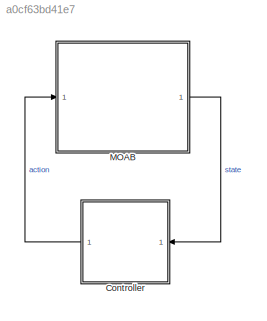
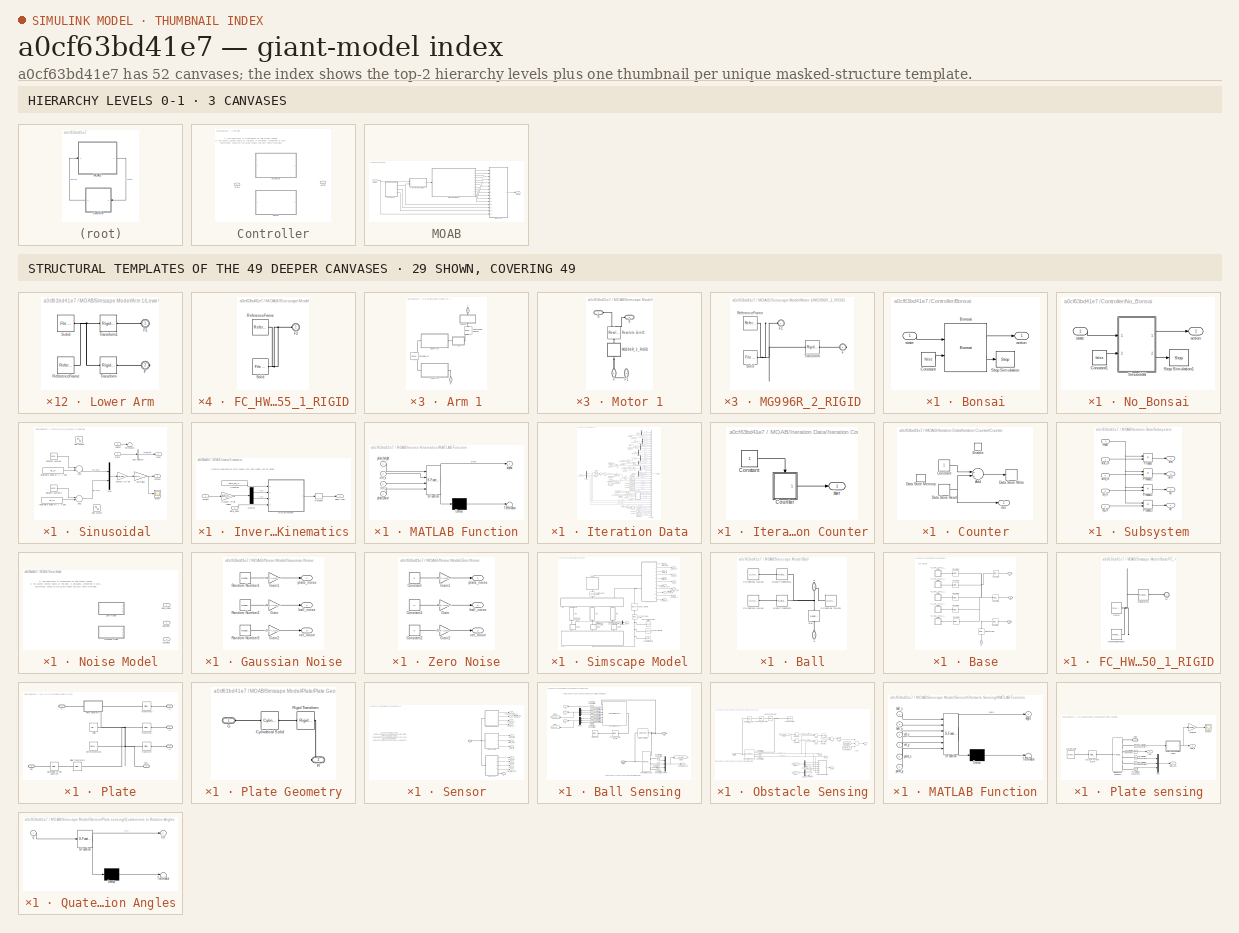
[diagram: thumbnail index - top-2 hierarchy levels (3 canvases) + 29 structural-template representatives of the remaining 49 canvases]
MODEL slx_a0cf63bd41e7
KIND model
CONFIG AbsTol = 1e-3
CONFIG EnableMultiTasking = off
CONFIG FixedStep = auto
CONFIG MaxStep = auto
CONFIG MinStep = auto
CONFIG RelTol = 1e-3
CONFIG SampleTimeConstraint = Unconstrained
CONFIG Solver = ode23t
CONFIG SolverName = ode23t
CONFIG StartTime = 0.0
CONFIG StopTime = Inf
BLOCK [SubSystem] Controller
  AttributesFormatString = %<Name>
  CloseFcn = disp('closing');
  LabelModeActiveChoice = Bonsai
  Ports = [1, 1]
  RequestExecContextInheritance = off
  ShowPortLabels = FromPortBlockName
  Variant = on
  VariantControlMode = Label
BLOCK [SubSystem] Controller/Bonsai
  Ports = [1, 1]
  RequestExecContextInheritance = off
  VariantControl = Bonsai
BLOCK [Reference] Controller/Bonsai/Bonsai  REF=bonsai_library/Bonsai
  Ports = [2, 2]
  SourceBlock = bonsai_library/Bonsai
  SourceProductName = Bonsai Toolbox
BLOCK [Constant] Controller/Bonsai/Constant
  Value = false
BLOCK [Stop] Controller/Bonsai/Stop Simulation
BLOCK [Outport] Controller/Bonsai/action
  IconDisplay = Port number
BLOCK [Inport] Controller/Bonsai/state
  IconDisplay = Port number
BLOCK [SubSystem] Controller/No_Bonsai
  Ports = [1, 1]
  RequestExecContextInheritance = off
  VariantControl = Sinusoid
BLOCK [Constant] Controller/No_Bonsai/Constant1
  Value = false
BLOCK [SubSystem] Controller/No_Bonsai/Sinusoidal 
  Ports = [2, 2]
  RequestExecContextInheritance = off
BLOCK [Sum] Controller/No_Bonsai/Sinusoidal /Add1
  InputSameDT = off
  OutDataTypeStr = Inherit: Inherit via internal rule
  Ports = [2, 1]
  SaturateOnIntegerOverflow = off
BLOCK [Sum] Controller/No_Bonsai/Sinusoidal /Add2
  InputSameDT = off
  OutDataTypeStr = Inherit: Inherit via internal rule
  Ports = [2, 1]
  SaturateOnIntegerOverflow = off
BLOCK [BusSelector] Controller/No_Bonsai/Sinusoidal /Bus Selector
  OutputAsBus = off
  OutputSignals = ball_fell_off
  Ports = [1, 1]
BLOCK [Gain] Controller/No_Bonsai/Sinusoidal /Convert to rad
  Gain = pi/180
  OutDataTypeStr = Inherit: Inherit via internal rule
  ParamDataTypeStr = Inherit: Inherit via internal rule
  SaturateOnIntegerOverflow = off
BLOCK [Constant] Controller/No_Bonsai/Sinusoidal /Initial plate angle w.r.t. x axis
  Value = tilt_y0
BLOCK [Constant] Controller/No_Bonsai/Sinusoidal /Initial plate angle w.r.t. y axis
  Value = tilt_x0
BLOCK [Mux] Controller/No_Bonsai/Sinusoidal /Mux
  DisplayOption = bar
  Inputs = 2
  Ports = [2, 1]
BLOCK [Gain] Controller/No_Bonsai/Sinusoidal /Normalize
  Gain = 1/tilt_limit
  OutDataTypeStr = Inherit: Inherit via internal rule
  ParamDataTypeStr = Inherit: Inherit via internal rule
  SaturateOnIntegerOverflow = off
BLOCK [RandomNumber] Controller/No_Bonsai/Sinusoidal /Random Number
  SampleTime = DEFAULT_SIMULATION_RATE
  Variance = 0.5
BLOCK [RandomNumber] Controller/No_Bonsai/Sinusoidal /Random Number1
  SampleTime = DEFAULT_SIMULATION_RATE
  Variance = 0.5
BLOCK [Scope] Controller/No_Bonsai/Sinusoidal /Scope
  Floating = off
  NumInputPorts = 1
  Ports = [1]
  ScopeSpecificationString = Simulink.scopes.TimeScopeBlockCfg('CurrentConfiguration', extmgr.ConfigurationSet(extmgr.Configuration('Core','General UI',true),extmgr.Configuration('Core','Source UI',true),extmgr.Configuration('Sources','WiredSimulink',true,'DataLoggingVariableName','ScopeData1'),extmgr.Configuration('Visuals','Time Domain',true,'SerializedDisplays',{struct('MinYLimReal','-0.42457','MaxYLimReal','0.36435','YLab...<+1384ch>
BLOCK [Sin] Controller/No_Bonsai/Sinusoidal /Sine Wave1
  Amplitude = 0
  Commented = on
  Frequency = 6
  Phase = pi
  Ports = [0, 1]
  SampleTime = DEFAULT_SIMULATION_RATE
BLOCK [Sin] Controller/No_Bonsai/Sinusoidal /Sine Wave2
  Amplitude = 2
  Commented = on
  Frequency = 6
  Phase = pi/2
  Ports = [0, 1]
  SampleTime = DEFAULT_SIMULATION_RATE
BLOCK [Terminator] Controller/No_Bonsai/Sinusoidal /Terminator
BLOCK [Outport] Controller/No_Bonsai/Sinusoidal /actions
  IconDisplay = Port number
BLOCK [Inport] Controller/No_Bonsai/Sinusoidal /halted
  IconDisplay = Port number
  Port = 2
BLOCK [Outport] Controller/No_Bonsai/Sinusoidal /reset
  IconDisplay = Port number
  Port = 2
BLOCK [Inport] Controller/No_Bonsai/Sinusoidal /state
  IconDisplay = Port number
BLOCK [Stop] Controller/No_Bonsai/Stop Simulation1
BLOCK [Outport] Controller/No_Bonsai/action
  IconDisplay = Port number
BLOCK [Inport] Controller/No_Bonsai/state
  IconDisplay = Port number
BLOCK [Outport] Controller/action
  IconDisplay = Port number
BLOCK [Inport] Controller/state
  IconDisplay = Port number
BLOCK [SubSystem] MOAB
  Ports = [1, 1]
  RequestExecContextInheritance = off
BLOCK [SubSystem] MOAB/Inverse Kinematics
  Ports = [2, 1]
  RequestExecContextInheritance = off
BLOCK [Constant] MOAB/Inverse Kinematics/Constant
  Value = plate_pos_z0+z_offset
BLOCK [Gain] MOAB/Inverse Kinematics/Convert To Tilt Angles
  Gain = tilt_limit
  OutDataTypeStr = Inherit: Inherit via internal rule
  ParamDataTypeStr = Inherit: Inherit via internal rule
  SaturateOnIntegerOverflow = off
BLOCK [Demux] MOAB/Inverse Kinematics/Demux
  DisplayOption = bar
  Outputs = 2
  Ports = [1, 2]
BLOCK [SubSystem] MOAB/Inverse Kinematics/MATLAB Function
  ErrorFcn = Stateflow.Translate.translate
  PermitHierarchicalResolution = ExplicitOnly
  Ports = [4, 1]
  RequestExecContextInheritance = off
  SFBlockType = MATLAB Function
  TreatAsAtomicUnit = on
BLOCK [Demux] MOAB/Inverse Kinematics/MATLAB Function/ Demux 
  DisplayOption = bar
  Outputs = 1
  Ports = [1, 1]
BLOCK [S-Function] MOAB/Inverse Kinematics/MATLAB Function/ SFunction 
  EnableBusSupport = on
  FunctionName = sf_sfun
  PortCounts = [4 2]
  Ports = [4, 2]
  SFcnIsStateOwnerBlock = off
  SFunctionDeploymentMode = off
  Tag = Stateflow S-Function 1
BLOCK [Terminator] MOAB/Inverse Kinematics/MATLAB Function/ Terminator 
BLOCK [Outport] MOAB/Inverse Kinematics/MATLAB Function/alpha
  IconDisplay = Port number
BLOCK [Inport] MOAB/Inverse Kinematics/MATLAB Function/plate_height
  IconDisplay = Port number
BLOCK [Inport] MOAB/Inverse Kinematics/MATLAB Function/plate_noise
  IconDisplay = Port number
  Port = 4
BLOCK [Inport] MOAB/Inverse Kinematics/MATLAB Function/tilt_x
  IconDisplay = Port number
  Port = 2
BLOCK [Inport] MOAB/Inverse Kinematics/MATLAB Function/tilt_y
  IconDisplay = Port number
  Port = 3
BLOCK [Reshape] MOAB/Inverse Kinematics/Reshape
  Ports = [1, 1]
BLOCK [Inport] MOAB/Inverse Kinematics/actions
  IconDisplay = Port number
BLOCK [Outport] MOAB/Inverse Kinematics/alpha (rad)
  IconDisplay = Port number
BLOCK [Inport] MOAB/Inverse Kinematics/plate_noise
  IconDisplay = Port number
  Port = 2
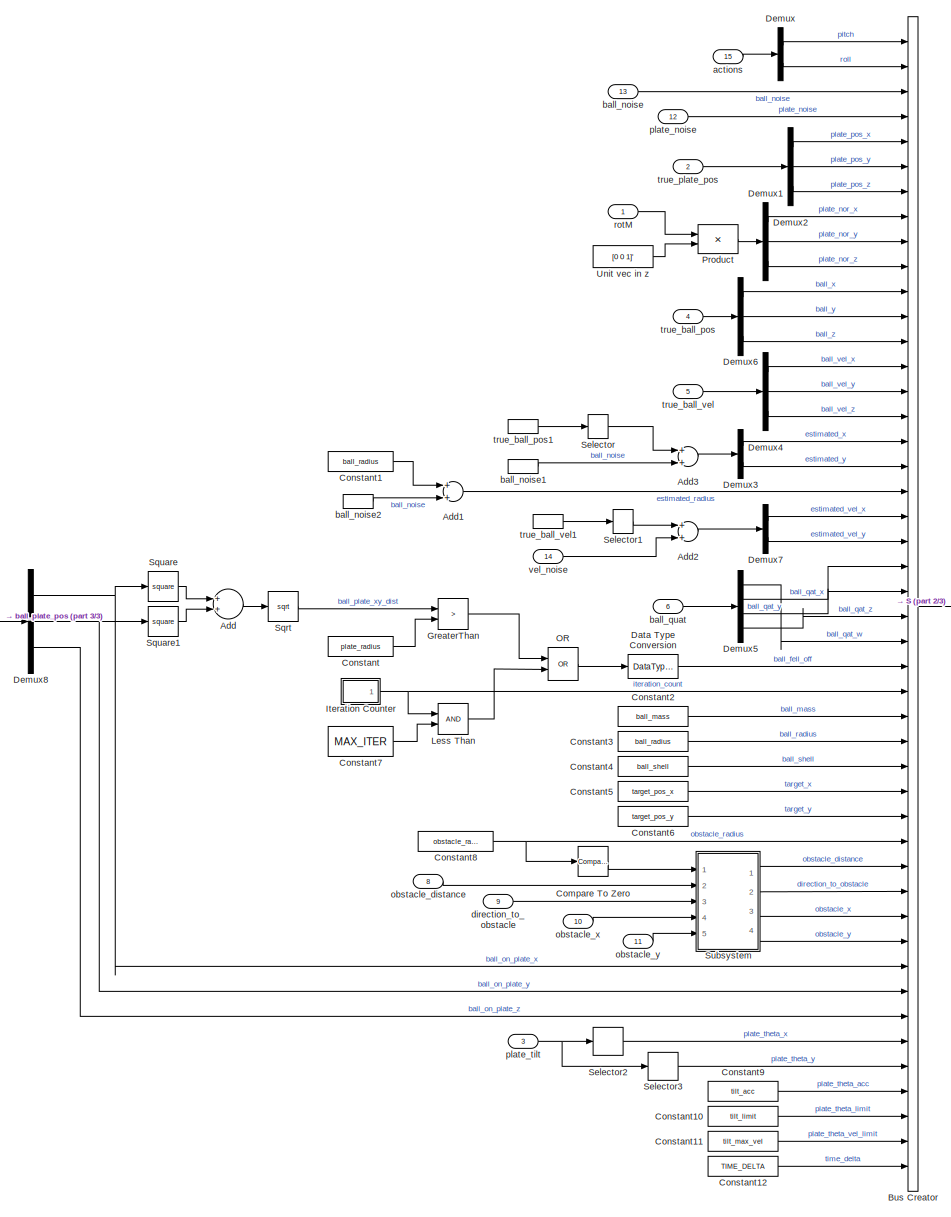
[diagram: MOAB/Iteration Data - part 1/3, most of the canvas]
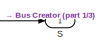
[diagram: MOAB/Iteration Data - part 2/3, middle right region]
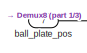
[diagram: MOAB/Iteration Data - part 3/3, middle left region]
BLOCK [SubSystem] MOAB/Iteration Data
  Ports = [15, 1]
  RequestExecContextInheritance = off
  VariantControl = Choice
BLOCK [Sum] MOAB/Iteration Data/Add
  InputSameDT = off
  OutDataTypeStr = Inherit: Inherit via internal rule
  Ports = [2, 1]
  SaturateOnIntegerOverflow = off
BLOCK [Sum] MOAB/Iteration Data/Add1
  InputSameDT = off
  OutDataTypeStr = Inherit: Inherit via internal rule
  Ports = [2, 1]
  SaturateOnIntegerOverflow = off
BLOCK [Sum] MOAB/Iteration Data/Add2
  InputSameDT = off
  OutDataTypeStr = Inherit: Inherit via internal rule
  Ports = [2, 1]
  SaturateOnIntegerOverflow = off
BLOCK [Sum] MOAB/Iteration Data/Add3
  InputSameDT = off
  OutDataTypeStr = Inherit: Inherit via internal rule
  Ports = [2, 1]
  SaturateOnIntegerOverflow = off
BLOCK [BusCreator] MOAB/Iteration Data/Bus Creator
  DisplayOption = bar
  InheritFromInputs = on
  Inputs = 46
  Ports = [46, 1]
BLOCK [Reference] MOAB/Iteration Data/Compare To Zero  REF=simulink/Logic and Bit
Operations/Compare
To Zero
  Ports = [1, 1]
  SourceBlock = simulink/Logic and Bit\nOperations/Compare\nTo Zero
  SourceProductBaseCode = SL
  SourceProductName = Simulink
  SourceType = Compare To Zero
BLOCK [Constant] MOAB/Iteration Data/Constant
  Value = plate_radius
BLOCK [Constant] MOAB/Iteration Data/Constant1
  Value = ball_radius
BLOCK [Constant] MOAB/Iteration Data/Constant10
  Value = tilt_limit
BLOCK [Constant] MOAB/Iteration Data/Constant11
  Value = tilt_max_vel
BLOCK [Constant] MOAB/Iteration Data/Constant12
  Value = TIME_DELTA
BLOCK [Constant] MOAB/Iteration Data/Constant2
  Value = ball_mass
BLOCK [Constant] MOAB/Iteration Data/Constant3
  Value = ball_radius
BLOCK [Constant] MOAB/Iteration Data/Constant4
  Value = ball_shell
BLOCK [Constant] MOAB/Iteration Data/Constant5
  Value = target_pos_x
BLOCK [Constant] MOAB/Iteration Data/Constant6
  Value = target_pos_y
BLOCK [Constant] MOAB/Iteration Data/Constant7
  Value = MAX_ITER
BLOCK [Constant] MOAB/Iteration Data/Constant8
  Value = obstacle_radius
BLOCK [Constant] MOAB/Iteration Data/Constant9
  Value = tilt_acc
BLOCK [DataTypeConversion] MOAB/Iteration Data/Data Type Conversion
  OutDataTypeStr = double
  RndMeth = Floor
  SaturateOnIntegerOverflow = off
BLOCK [Demux] MOAB/Iteration Data/Demux
  DisplayOption = bar
  Outputs = 2
  Ports = [1, 2]
BLOCK [Demux] MOAB/Iteration Data/Demux1
  DisplayOption = bar
  Outputs = 3
  Ports = [1, 3]
BLOCK [Demux] MOAB/Iteration Data/Demux2
  DisplayOption = bar
  Outputs = 3
  Ports = [1, 3]
BLOCK [Demux] MOAB/Iteration Data/Demux3
  DisplayOption = bar
  Outputs = 2
  Ports = [1, 2]
BLOCK [Demux] MOAB/Iteration Data/Demux4
  DisplayOption = bar
  Outputs = 3
  Ports = [1, 3]
BLOCK [Demux] MOAB/Iteration Data/Demux5
  DisplayOption = bar
  Ports = [1, 4]
BLOCK [Demux] MOAB/Iteration Data/Demux6
  DisplayOption = bar
  Outputs = 3
  Ports = [1, 3]
BLOCK [Demux] MOAB/Iteration Data/Demux7
  DisplayOption = bar
  Outputs = 2
  Ports = [1, 2]
BLOCK [Demux] MOAB/Iteration Data/Demux8
  DisplayOption = bar
  Outputs = 3
  Ports = [1, 3]
BLOCK [RelationalOperator] MOAB/Iteration Data/GreaterThan
  InputSameDT = off
  Operator = >
  OutDataTypeStr = boolean
  Ports = [2, 1]
  RndMeth = Simplest
BLOCK [SubSystem] MOAB/Iteration Data/Iteration Counter
  Ports = [0, 1]
  RequestExecContextInheritance = off
BLOCK [Constant] MOAB/Iteration Data/Iteration Counter/Constant
  SampleTime = DEFAULT_SIMULATION_RATE
BLOCK [SubSystem] MOAB/Iteration Data/Iteration Counter/Counter
  Ports = [0, 1, 1]
  RequestExecContextInheritance = off
BLOCK [Sum] MOAB/Iteration Data/Iteration Counter/Counter/Add
  InputSameDT = off
  OutDataTypeStr = Inherit: Inherit via internal rule
  Ports = [2, 1]
  SaturateOnIntegerOverflow = off
BLOCK [Constant] MOAB/Iteration Data/Iteration Counter/Counter/Constant
BLOCK [DataStoreMemory] MOAB/Iteration Data/Iteration Counter/Counter/Data Store Memory
  DataStoreName = iter
  Priority = 1
  ShowAdditionalParam = off
  WriteAfterReadMsg = warning
  WriteAfterWriteMsg = warning
BLOCK [DataStoreRead] MOAB/Iteration Data/Iteration Counter/Counter/Data Store Read
  DataStoreName = iter
  Ports = [0, 1]
BLOCK [DataStoreWrite] MOAB/Iteration Data/Iteration Counter/Counter/Data Store Write
  DataStoreName = iter
  Ports = [1]
BLOCK [EnablePort] MOAB/Iteration Data/Iteration Counter/Counter/Enable
  Ports = []
BLOCK [Outport] MOAB/Iteration Data/Iteration Counter/Counter/iter
  IconDisplay = Port number
BLOCK [Outport] MOAB/Iteration Data/Iteration Counter/iter
  IconDisplay = Port number
BLOCK [RelationalOperator] MOAB/Iteration Data/Less Than
  InputSameDT = off
  OutDataTypeStr = boolean
  Ports = [2, 1]
  RndMeth = Simplest
BLOCK [Logic] MOAB/Iteration Data/OR
  AllPortsSameDT = off
  Operator = OR
  OutDataTypeStr = boolean
  Ports = [2, 1]
BLOCK [Product] MOAB/Iteration Data/Product
  InputSameDT = off
  Multiplication = Matrix(*)
  OutDataTypeStr = Inherit: Inherit via internal rule
  Ports = [2, 1]
  RndMeth = Floor
  SaturateOnIntegerOverflow = off
BLOCK [Outport] MOAB/Iteration Data/S
  IconDisplay = Port number
BLOCK [Selector] MOAB/Iteration Data/Selector
  IndexOptions = Index vector (dialog)
  Indices = 1:2
  InputPortWidth = 3
  OutputSizes = 1
  Ports = [1, 1]
BLOCK [Selector] MOAB/Iteration Data/Selector1
  IndexOptions = Index vector (dialog)
  Indices = 1:2
  InputPortWidth = 3
  OutputSizes = 1
  Ports = [1, 1]
BLOCK [Selector] MOAB/Iteration Data/Selector2
  IndexOptions = Index vector (dialog)
  Indices = 1
  InputPortWidth = 3
  OutputSizes = 1
  Ports = [1, 1]
BLOCK [Selector] MOAB/Iteration Data/Selector3
  IndexOptions = Index vector (dialog)
  Indices = 2
  InputPortWidth = 3
  OutputSizes = 1
  Ports = [1, 1]
BLOCK [Sqrt] MOAB/Iteration Data/Sqrt
BLOCK [Math] MOAB/Iteration Data/Square
  Operator = square
  Ports = [1, 1]
  SignedPower = off
BLOCK [Math] MOAB/Iteration Data/Square1
  Operator = square
  Ports = [1, 1]
  SignedPower = off
BLOCK [SubSystem] MOAB/Iteration Data/Subsystem
  Ports = [5, 4]
  RequestExecContextInheritance = off
BLOCK [Product] MOAB/Iteration Data/Subsystem/Product
  InputSameDT = off
  OutDataTypeStr = Inherit: Inherit via internal rule
  Ports = [2, 1]
  RndMeth = Floor
  SaturateOnIntegerOverflow = off
BLOCK [Product] MOAB/Iteration Data/Subsystem/Product1
  InputSameDT = off
  OutDataTypeStr = Inherit: Inherit via internal rule
  Ports = [2, 1]
  RndMeth = Floor
  SaturateOnIntegerOverflow = off
BLOCK [Product] MOAB/Iteration Data/Subsystem/Product2
  InputSameDT = off
  OutDataTypeStr = Inherit: Inherit via internal rule
  Ports = [2, 1]
  RndMeth = Floor
  SaturateOnIntegerOverflow = off
BLOCK [Product] MOAB/Iteration Data/Subsystem/Product3
  InputSameDT = off
  OutDataTypeStr = Inherit: Inherit via internal rule
  Ports = [2, 1]
  RndMeth = Floor
  SaturateOnIntegerOverflow = off
BLOCK [Outport] MOAB/Iteration Data/Subsystem/dirn
  IconDisplay = Port number
  Port = 2
BLOCK [Inport] MOAB/Iteration Data/Subsystem/dirn_in
  IconDisplay = Port number
  Port = 3
BLOCK [Outport] MOAB/Iteration Data/Subsystem/dist
  IconDisplay = Port number
BLOCK [Inport] MOAB/Iteration Data/Subsystem/dist_in
  IconDisplay = Port number
  Port = 2
BLOCK [Inport] MOAB/Iteration Data/Subsystem/mode
  IconDisplay = Port number
BLOCK [Outport] MOAB/Iteration Data/Subsystem/ox
  IconDisplay = Port number
  Port = 3
BLOCK [Inport] MOAB/Iteration Data/Subsystem/ox_in
  IconDisplay = Port number
  Port = 4
BLOCK [Outport] MOAB/Iteration Data/Subsystem/oy
  IconDisplay = Port number
  Port = 4
BLOCK [Inport] MOAB/Iteration Data/Subsystem/oy_in
  IconDisplay = Port number
  Port = 5
BLOCK [Constant] MOAB/Iteration Data/Unit vec in z
  Value = [0 0 1]'
BLOCK [Inport] MOAB/Iteration Data/actions
  IconDisplay = Port number
  Port = 15
BLOCK [Inport] MOAB/Iteration Data/ball_noise
  IconDisplay = Port number
  Port = 13
BLOCK [InportShadow] MOAB/Iteration Data/ball_noise1
  IconDisplay = Port number
  Port = 13
BLOCK [InportShadow] MOAB/Iteration Data/ball_noise2
  IconDisplay = Port number
  Port = 13
BLOCK [Inport] MOAB/Iteration Data/ball_plate_pos
  IconDisplay = Port number
  Port = 7
BLOCK [Inport] MOAB/Iteration Data/ball_quat
  IconDisplay = Port number
  Port = 6
BLOCK [Inport] MOAB/Iteration Data/direction_to_obstacle
  IconDisplay = Port number
  Port = 9
BLOCK [Inport] MOAB/Iteration Data/obstacle_distance
  IconDisplay = Port number
  Port = 8
BLOCK [Inport] MOAB/Iteration Data/obstacle_x
  IconDisplay = Port number
  Port = 10
BLOCK [Inport] MOAB/Iteration Data/obstacle_y
  IconDisplay = Port number
  Port = 11
BLOCK [Inport] MOAB/Iteration Data/plate_noise
  IconDisplay = Port number
  Port = 12
BLOCK [Inport] MOAB/Iteration Data/plate_tilt
  IconDisplay = Port number
  Port = 3
BLOCK [Inport] MOAB/Iteration Data/rotM
  IconDisplay = Port number
BLOCK [Inport] MOAB/Iteration Data/true_ball_pos
  IconDisplay = Port number
  Port = 4
BLOCK [InportShadow] MOAB/Iteration Data/true_ball_pos1
  IconDisplay = Port number
  Port = 4
BLOCK [Inport] MOAB/Iteration Data/true_ball_vel
  IconDisplay = Port number
  Port = 5
BLOCK [InportShadow] MOAB/Iteration Data/true_ball_vel1
  IconDisplay = Port number
  Port = 5
BLOCK [Inport] MOAB/Iteration Data/true_plate_pos
  IconDisplay = Port number
  Port = 2
BLOCK [Inport] MOAB/Iteration Data/vel_noise
  IconDisplay = Port number
  Port = 14
BLOCK [SubSystem] MOAB/Noise Model
  LabelModeActiveChoice = Zero
  Ports = [0, 3]
  RequestExecContextInheritance = off
  Variant = on
  VariantControlMode = Label
BLOCK [SubSystem] MOAB/Noise Model/Gaussian Noise
  Ports = [0, 3]
  RequestExecContextInheritance = off
  VariantControl = Gaussian
BLOCK [Gain] MOAB/Noise Model/Gaussian Noise/Gain
  Gain = DEFAULT_BALL_NOISE
  OutDataTypeStr = Inherit: Inherit via internal rule
  ParamDataTypeStr = Inherit: Inherit via internal rule
  SaturateOnIntegerOverflow = off
BLOCK [Gain] MOAB/Noise Model/Gaussian Noise/Gain1
  Gain = DEFAULT_PLATE_NOISE
  OutDataTypeStr = Inherit: Inherit via internal rule
  ParamDataTypeStr = Inherit: Inherit via internal rule
  SaturateOnIntegerOverflow = off
BLOCK [Gain] MOAB/Noise Model/Gaussian Noise/Gain2
  Gain = DEFAULT_VEL_NOISE
  OutDataTypeStr = Inherit: Inherit via internal rule
  ParamDataTypeStr = Inherit: Inherit via internal rule
  SaturateOnIntegerOverflow = off
BLOCK [RandomNumber] MOAB/Noise Model/Gaussian Noise/Random Number1
  Mean = noise_mean
  Variance = noise_variance
BLOCK [RandomNumber] MOAB/Noise Model/Gaussian Noise/Random Number2
  Mean = noise_mean
  Variance = noise_variance
BLOCK [RandomNumber] MOAB/Noise Model/Gaussian Noise/Random Number3
  Mean = noise_mean
  Variance = noise_variance
BLOCK [Outport] MOAB/Noise Model/Gaussian Noise/ball_noise
  IconDisplay = Port number
  Port = 2
BLOCK [Outport] MOAB/Noise Model/Gaussian Noise/plate_noise
  IconDisplay = Port number
BLOCK [Outport] MOAB/Noise Model/Gaussian Noise/vel_noise
  IconDisplay = Port number
  Port = 3
BLOCK [SubSystem] MOAB/Noise Model/Zero Noise
  Ports = [0, 3]
  RequestExecContextInheritance = off
  VariantControl = Zero
BLOCK [Constant] MOAB/Noise Model/Zero Noise/Constant
  Value = 0
BLOCK [Constant] MOAB/Noise Model/Zero Noise/Constant1
  Value = 0
BLOCK [Constant] MOAB/Noise Model/Zero Noise/Constant2
  Value = 0
BLOCK [Gain] MOAB/Noise Model/Zero Noise/Gain
  Gain = DEFAULT_BALL_NOISE
  OutDataTypeStr = Inherit: Inherit via internal rule
  ParamDataTypeStr = Inherit: Inherit via internal rule
  SaturateOnIntegerOverflow = off
BLOCK [Gain] MOAB/Noise Model/Zero Noise/Gain1
  Gain = DEFAULT_PLATE_NOISE
  OutDataTypeStr = Inherit: Inherit via internal rule
  ParamDataTypeStr = Inherit: Inherit via internal rule
  SaturateOnIntegerOverflow = off
BLOCK [Gain] MOAB/Noise Model/Zero Noise/Gain2
  Gain = DEFAULT_VEL_NOISE
  OutDataTypeStr = Inherit: Inherit via internal rule
  ParamDataTypeStr = Inherit: Inherit via internal rule
  SaturateOnIntegerOverflow = off
BLOCK [Outport] MOAB/Noise Model/Zero Noise/ball_noise
  IconDisplay = Port number
  Port = 2
BLOCK [Outport] MOAB/Noise Model/Zero Noise/plate_noise
  IconDisplay = Port number
BLOCK [Outport] MOAB/Noise Model/Zero Noise/vel_noise
  IconDisplay = Port number
  Port = 3
BLOCK [Outport] MOAB/Noise Model/ball_noise
  IconDisplay = Port number
  Port = 2
BLOCK [Outport] MOAB/Noise Model/plate_noise
  IconDisplay = Port number
BLOCK [Outport] MOAB/Noise Model/vel_noise
  IconDisplay = Port number
  Port = 3
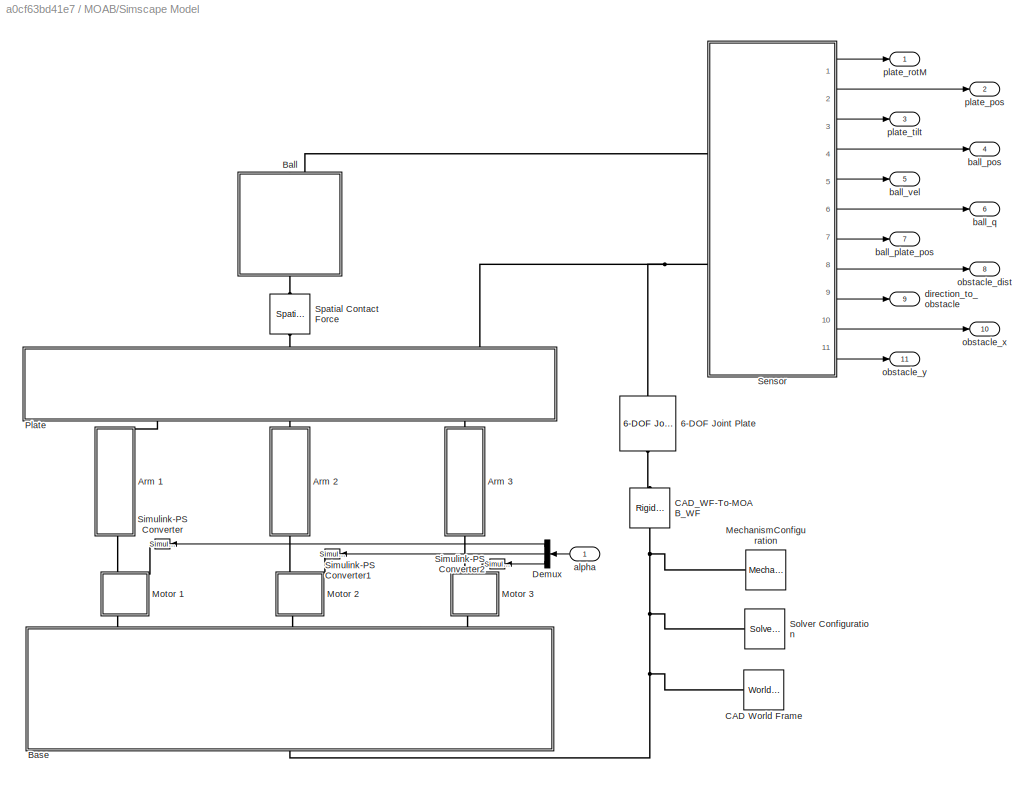
BLOCK [SubSystem] MOAB/Simscape Model
  Ports = [1, 11]
  RequestExecContextInheritance = off
BLOCK [Reference] MOAB/Simscape Model/6-DOF Joint Plate  REF=sm_lib/Joints/6-DOF Joint
  Ports = [0, 0, 0, 0, 0, 1, 1]
  SourceBlock = sm_lib/Joints/6-DOF Joint
  SourceProductBaseCode = MS
  SourceType = 6-DOF Joint
BLOCK [SubSystem] MOAB/Simscape Model/Arm 1
  Ports = [0, 0, 0, 0, 0, 1, 1]
  RequestExecContextInheritance = off
BLOCK [PMIOPort] MOAB/Simscape Model/Arm 1/B
  Port = 2
  Side = Left
BLOCK [PMIOPort] MOAB/Simscape Model/Arm 1/F
  Side = Right
BLOCK [SubSystem] MOAB/Simscape Model/Arm 1/Lower Arm
  Ports = [0, 0, 0, 0, 0, 1, 1]
  RequestExecContextInheritance = off
BLOCK [PMIOPort] MOAB/Simscape Model/Arm 1/Lower Arm/F
  Port = 2
  Side = Right
BLOCK [PMIOPort] MOAB/Simscape Model/Arm 1/Lower Arm/F1
  Side = Left
BLOCK [Reference] MOAB/Simscape Model/Arm 1/Lower Arm/ReferenceFrame  REF=sm_lib/Frames and
Transforms/Reference
Frame
  Ports = [0, 0, 0, 0, 0, 0, 1]
  SourceBlock = sm_lib/Frames and\nTransforms/Reference\nFrame
  SourceProductBaseCode = MS
  SourceType = Reference\nFrame
BLOCK [Reference] MOAB/Simscape Model/Arm 1/Lower Arm/Solid  REF=sm_lib/Body Elements/File Solid
  Ports = [0, 0, 0, 0, 0, 0, 1]
  SourceBlock = sm_lib/Body Elements/File Solid
  SourceProductBaseCode = MS
  SourceType = File Solid
BLOCK [Reference] MOAB/Simscape Model/Arm 1/Lower Arm/Transform  REF=sm_lib/Frames and
Transforms/Rigid
Transform
  Ports = [0, 0, 0, 0, 0, 1, 1]
  SourceBlock = sm_lib/Frames and\nTransforms/Rigid\nTransform
  SourceProductBaseCode = MS
  SourceType = Rigid\nTransform
BLOCK [Reference] MOAB/Simscape Model/Arm 1/Lower Arm/Transform1  REF=sm_lib/Frames and
Transforms/Rigid
Transform
  Ports = [0, 0, 0, 0, 0, 1, 1]
  SourceBlock = sm_lib/Frames and\nTransforms/Rigid\nTransform
  SourceProductBaseCode = MS
  SourceType = Rigid\nTransform
BLOCK [SubSystem] MOAB/Simscape Model/Arm 1/Magnet
  Ports = [0, 0, 0, 0, 0, 1, 1]
  RequestExecContextInheritance = off
BLOCK [PMIOPort] MOAB/Simscape Model/Arm 1/Magnet/F1
  Port = 2
  Side = Right
BLOCK [PMIOPort] MOAB/Simscape Model/Arm 1/Magnet/F2
  Side = Left
BLOCK [Reference] MOAB/Simscape Model/Arm 1/Magnet/ReferenceFrame  REF=sm_lib/Frames and
Transforms/Reference
Frame
  Ports = [0, 0, 0, 0, 0, 0, 1]
  SourceBlock = sm_lib/Frames and\nTransforms/Reference\nFrame
  SourceProductBaseCode = MS
  SourceType = Reference\nFrame
BLOCK [Reference] MOAB/Simscape Model/Arm 1/Magnet/Solid  REF=sm_lib/Body Elements/File Solid
  Ports = [0, 0, 0, 0, 0, 0, 1]
  SourceBlock = sm_lib/Body Elements/File Solid
  SourceProductBaseCode = MS
  SourceType = File Solid
BLOCK [Reference] MOAB/Simscape Model/Arm 1/Magnet/Transform1  REF=sm_lib/Frames and
Transforms/Rigid
Transform
  Ports = [0, 0, 0, 0, 0, 1, 1]
  SourceBlock = sm_lib/Frames and\nTransforms/Rigid\nTransform
  SourceProductBaseCode = MS
  SourceType = Rigid\nTransform
BLOCK [Reference] MOAB/Simscape Model/Arm 1/Magnet/Transform2  REF=sm_lib/Frames and
Transforms/Rigid
Transform
  Ports = [0, 0, 0, 0, 0, 1, 1]
  SourceBlock = sm_lib/Frames and\nTransforms/Rigid\nTransform
  SourceProductBaseCode = MS
  SourceType = Rigid\nTransform
BLOCK [SubSystem] MOAB/Simscape Model/Arm 1/Pin
  Ports = [0, 0, 0, 0, 0, 1, 1]
  RequestExecContextInheritance = off
BLOCK [PMIOPort] MOAB/Simscape Model/Arm 1/Pin/F1
  Port = 2
  Side = Right
BLOCK [PMIOPort] MOAB/Simscape Model/Arm 1/Pin/F2
  Side = Left
BLOCK [Reference] MOAB/Simscape Model/Arm 1/Pin/ReferenceFrame  REF=sm_lib/Frames and
Transforms/Reference
Frame
  Ports = [0, 0, 0, 0, 0, 0, 1]
  SourceBlock = sm_lib/Frames and\nTransforms/Reference\nFrame
  SourceProductBaseCode = MS
  SourceType = Reference\nFrame
BLOCK [Reference] MOAB/Simscape Model/Arm 1/Pin/Solid  REF=sm_lib/Body Elements/File Solid
  Ports = [0, 0, 0, 0, 0, 0, 1]
  SourceBlock = sm_lib/Body Elements/File Solid
  SourceProductBaseCode = MS
  SourceType = File Solid
BLOCK [Reference] MOAB/Simscape Model/Arm 1/Pin/Transform  REF=sm_lib/Frames and
Transforms/Rigid
Transform
  Ports = [0, 0, 0, 0, 0, 1, 1]
  SourceBlock = sm_lib/Frames and\nTransforms/Rigid\nTransform
  SourceProductBaseCode = MS
  SourceType = Rigid\nTransform
BLOCK [Reference] MOAB/Simscape Model/Arm 1/Pin/Transform2  REF=sm_lib/Frames and
Transforms/Rigid
Transform
  Ports = [0, 0, 0, 0, 0, 1, 1]
  SourceBlock = sm_lib/Frames and\nTransforms/Rigid\nTransform
  SourceProductBaseCode = MS
  SourceType = Rigid\nTransform
BLOCK [Reference] MOAB/Simscape Model/Arm 1/Revolute Arm  REF=sm_lib/Joints/Revolute Joint
  Ports = [0, 0, 0, 0, 0, 1, 1]
  SourceBlock = sm_lib/Joints/Revolute Joint
  SourceProductBaseCode = MS
  SourceType = Revolute Joint
BLOCK [Reference] MOAB/Simscape Model/Arm 1/Spherical Pin Magnet  REF=sm_lib/Joints/Spherical
Joint
  Ports = [0, 0, 0, 0, 0, 1, 1]
  SourceBlock = sm_lib/Joints/Spherical\nJoint
  SourceProductBaseCode = MS
  SourceType = Spherical\nJoint
BLOCK [SubSystem] MOAB/Simscape Model/Arm 1/Upper Arm
  Ports = [0, 0, 0, 0, 0, 1, 1]
  RequestExecContextInheritance = off
BLOCK [PMIOPort] MOAB/Simscape Model/Arm 1/Upper Arm/F
  Side = Left
BLOCK [PMIOPort] MOAB/Simscape Model/Arm 1/Upper Arm/F1
  Port = 2
  Side = Right
BLOCK [Reference] MOAB/Simscape Model/Arm 1/Upper Arm/ReferenceFrame  REF=sm_lib/Frames and
Transforms/Reference
Frame
  Ports = [0, 0, 0, 0, 0, 0, 1]
  SourceBlock = sm_lib/Frames and\nTransforms/Reference\nFrame
  SourceProductBaseCode = MS
  SourceType = Reference\nFrame
BLOCK [Reference] MOAB/Simscape Model/Arm 1/Upper Arm/Solid  REF=sm_lib/Body Elements/File Solid
  Ports = [0, 0, 0, 0, 0, 0, 1]
  SourceBlock = sm_lib/Body Elements/File Solid
  SourceProductBaseCode = MS
  SourceType = File Solid
BLOCK [Reference] MOAB/Simscape Model/Arm 1/Upper Arm/Transform  REF=sm_lib/Frames and
Transforms/Rigid
Transform
  Ports = [0, 0, 0, 0, 0, 1, 1]
  SourceBlock = sm_lib/Frames and\nTransforms/Rigid\nTransform
  SourceProductBaseCode = MS
  SourceType = Rigid\nTransform
BLOCK [Reference] MOAB/Simscape Model/Arm 1/Upper Arm/Transform1  REF=sm_lib/Frames and
Transforms/Rigid
Transform
  Ports = [0, 0, 0, 0, 0, 1, 1]
  SourceBlock = sm_lib/Frames and\nTransforms/Rigid\nTransform
  SourceProductBaseCode = MS
  SourceType = Rigid\nTransform
BLOCK [SubSystem] MOAB/Simscape Model/Arm 2
  Ports = [0, 0, 0, 0, 0, 1, 1]
  RequestExecContextInheritance = off
BLOCK [PMIOPort] MOAB/Simscape Model/Arm 2/B
  Port = 2
  Side = Left
BLOCK [PMIOPort] MOAB/Simscape Model/Arm 2/F
  Side = Right
BLOCK [SubSystem] MOAB/Simscape Model/Arm 2/Lower Arm
  Ports = [0, 0, 0, 0, 0, 1, 1]
  RequestExecContextInheritance = off
BLOCK [PMIOPort] MOAB/Simscape Model/Arm 2/Lower Arm/F
  Port = 2
  Side = Right
BLOCK [PMIOPort] MOAB/Simscape Model/Arm 2/Lower Arm/F1
  Side = Left
BLOCK [Reference] MOAB/Simscape Model/Arm 2/Lower Arm/ReferenceFrame  REF=sm_lib/Frames and
Transforms/Reference
Frame
  Ports = [0, 0, 0, 0, 0, 0, 1]
  SourceBlock = sm_lib/Frames and\nTransforms/Reference\nFrame
  SourceProductBaseCode = MS
  SourceType = Reference\nFrame
BLOCK [Reference] MOAB/Simscape Model/Arm 2/Lower Arm/Solid  REF=sm_lib/Body Elements/File Solid
  Ports = [0, 0, 0, 0, 0, 0, 1]
  SourceBlock = sm_lib/Body Elements/File Solid
  SourceProductBaseCode = MS
  SourceType = File Solid
BLOCK [Reference] MOAB/Simscape Model/Arm 2/Lower Arm/Transform  REF=sm_lib/Frames and
Transforms/Rigid
Transform
  Ports = [0, 0, 0, 0, 0, 1, 1]
  SourceBlock = sm_lib/Frames and\nTransforms/Rigid\nTransform
  SourceProductBaseCode = MS
  SourceType = Rigid\nTransform
BLOCK [Reference] MOAB/Simscape Model/Arm 2/Lower Arm/Transform1  REF=sm_lib/Frames and
Transforms/Rigid
Transform
  Ports = [0, 0, 0, 0, 0, 1, 1]
  SourceBlock = sm_lib/Frames and\nTransforms/Rigid\nTransform
  SourceProductBaseCode = MS
  SourceType = Rigid\nTransform
BLOCK [SubSystem] MOAB/Simscape Model/Arm 2/Magnet
  Ports = [0, 0, 0, 0, 0, 1, 1]
  RequestExecContextInheritance = off
BLOCK [PMIOPort] MOAB/Simscape Model/Arm 2/Magnet/F1
  Port = 2
  Side = Right
BLOCK [PMIOPort] MOAB/Simscape Model/Arm 2/Magnet/F2
  Side = Left
BLOCK [Reference] MOAB/Simscape Model/Arm 2/Magnet/ReferenceFrame  REF=sm_lib/Frames and
Transforms/Reference
Frame
  Ports = [0, 0, 0, 0, 0, 0, 1]
  SourceBlock = sm_lib/Frames and\nTransforms/Reference\nFrame
  SourceProductBaseCode = MS
  SourceType = Reference\nFrame
BLOCK [Reference] MOAB/Simscape Model/Arm 2/Magnet/Solid  REF=sm_lib/Body Elements/File Solid
  Ports = [0, 0, 0, 0, 0, 0, 1]
  SourceBlock = sm_lib/Body Elements/File Solid
  SourceProductBaseCode = MS
  SourceType = File Solid
BLOCK [Reference] MOAB/Simscape Model/Arm 2/Magnet/Transform1  REF=sm_lib/Frames and
Transforms/Rigid
Transform
  Ports = [0, 0, 0, 0, 0, 1, 1]
  SourceBlock = sm_lib/Frames and\nTransforms/Rigid\nTransform
  SourceProductBaseCode = MS
  SourceType = Rigid\nTransform
BLOCK [Reference] MOAB/Simscape Model/Arm 2/Magnet/Transform2  REF=sm_lib/Frames and
Transforms/Rigid
Transform
  Ports = [0, 0, 0, 0, 0, 1, 1]
  SourceBlock = sm_lib/Frames and\nTransforms/Rigid\nTransform
  SourceProductBaseCode = MS
  SourceType = Rigid\nTransform
BLOCK [SubSystem] MOAB/Simscape Model/Arm 2/Pin
  Ports = [0, 0, 0, 0, 0, 1, 1]
  RequestExecContextInheritance = off
BLOCK [PMIOPort] MOAB/Simscape Model/Arm 2/Pin/F1
  Port = 2
  Side = Right
BLOCK [PMIOPort] MOAB/Simscape Model/Arm 2/Pin/F2
  Side = Left
BLOCK [Reference] MOAB/Simscape Model/Arm 2/Pin/ReferenceFrame  REF=sm_lib/Frames and
Transforms/Reference
Frame
  Ports = [0, 0, 0, 0, 0, 0, 1]
  SourceBlock = sm_lib/Frames and\nTransforms/Reference\nFrame
  SourceProductBaseCode = MS
  SourceType = Reference\nFrame
BLOCK [Reference] MOAB/Simscape Model/Arm 2/Pin/Solid  REF=sm_lib/Body Elements/File Solid
  Ports = [0, 0, 0, 0, 0, 0, 1]
  SourceBlock = sm_lib/Body Elements/File Solid
  SourceProductBaseCode = MS
  SourceType = File Solid
BLOCK [Reference] MOAB/Simscape Model/Arm 2/Pin/Transform  REF=sm_lib/Frames and
Transforms/Rigid
Transform
  Ports = [0, 0, 0, 0, 0, 1, 1]
  SourceBlock = sm_lib/Frames and\nTransforms/Rigid\nTransform
  SourceProductBaseCode = MS
  SourceType = Rigid\nTransform
BLOCK [Reference] MOAB/Simscape Model/Arm 2/Pin/Transform2  REF=sm_lib/Frames and
Transforms/Rigid
Transform
  Ports = [0, 0, 0, 0, 0, 1, 1]
  SourceBlock = sm_lib/Frames and\nTransforms/Rigid\nTransform
  SourceProductBaseCode = MS
  SourceType = Rigid\nTransform
BLOCK [Reference] MOAB/Simscape Model/Arm 2/Revolute Arm  REF=sm_lib/Joints/Revolute Joint
  Ports = [0, 0, 0, 0, 0, 1, 1]
  SourceBlock = sm_lib/Joints/Revolute Joint
  SourceProductBaseCode = MS
  SourceType = Revolute Joint
BLOCK [Reference] MOAB/Simscape Model/Arm 2/Spherical Pin Magnet  REF=sm_lib/Joints/Spherical
Joint
  Ports = [0, 0, 0, 0, 0, 1, 1]
  SourceBlock = sm_lib/Joints/Spherical\nJoint
  SourceProductBaseCode = MS
  SourceType = Spherical\nJoint
BLOCK [SubSystem] MOAB/Simscape Model/Arm 2/Upper Arm
  Ports = [0, 0, 0, 0, 0, 1, 1]
  RequestExecContextInheritance = off
BLOCK [PMIOPort] MOAB/Simscape Model/Arm 2/Upper Arm/F
  Side = Left
BLOCK [PMIOPort] MOAB/Simscape Model/Arm 2/Upper Arm/F1
  Port = 2
  Side = Right
BLOCK [Reference] MOAB/Simscape Model/Arm 2/Upper Arm/ReferenceFrame  REF=sm_lib/Frames and
Transforms/Reference
Frame
  Ports = [0, 0, 0, 0, 0, 0, 1]
  SourceBlock = sm_lib/Frames and\nTransforms/Reference\nFrame
  SourceProductBaseCode = MS
  SourceType = Reference\nFrame
BLOCK [Reference] MOAB/Simscape Model/Arm 2/Upper Arm/Solid  REF=sm_lib/Body Elements/File Solid
  Ports = [0, 0, 0, 0, 0, 0, 1]
  SourceBlock = sm_lib/Body Elements/File Solid
  SourceProductBaseCode = MS
  SourceType = File Solid
BLOCK [Reference] MOAB/Simscape Model/Arm 2/Upper Arm/Transform  REF=sm_lib/Frames and
Transforms/Rigid
Transform
  Ports = [0, 0, 0, 0, 0, 1, 1]
  SourceBlock = sm_lib/Frames and\nTransforms/Rigid\nTransform
  SourceProductBaseCode = MS
  SourceType = Rigid\nTransform
BLOCK [Reference] MOAB/Simscape Model/Arm 2/Upper Arm/Transform1  REF=sm_lib/Frames and
Transforms/Rigid
Transform
  Ports = [0, 0, 0, 0, 0, 1, 1]
  SourceBlock = sm_lib/Frames and\nTransforms/Rigid\nTransform
  SourceProductBaseCode = MS
  SourceType = Rigid\nTransform
BLOCK [SubSystem] MOAB/Simscape Model/Arm 3
  Ports = [0, 0, 0, 0, 0, 1, 1]
  RequestExecContextInheritance = off
BLOCK [PMIOPort] MOAB/Simscape Model/Arm 3/B
  Port = 2
  Side = Left
BLOCK [PMIOPort] MOAB/Simscape Model/Arm 3/F
  Side = Right
BLOCK [SubSystem] MOAB/Simscape Model/Arm 3/Lower Arm
  Ports = [0, 0, 0, 0, 0, 1, 1]
  RequestExecContextInheritance = off
BLOCK [PMIOPort] MOAB/Simscape Model/Arm 3/Lower Arm/F
  Port = 2
  Side = Right
BLOCK [PMIOPort] MOAB/Simscape Model/Arm 3/Lower Arm/F1
  Side = Left
BLOCK [Reference] MOAB/Simscape Model/Arm 3/Lower Arm/ReferenceFrame  REF=sm_lib/Frames and
Transforms/Reference
Frame
  Ports = [0, 0, 0, 0, 0, 0, 1]
  SourceBlock = sm_lib/Frames and\nTransforms/Reference\nFrame
  SourceProductBaseCode = MS
  SourceType = Reference\nFrame
BLOCK [Reference] MOAB/Simscape Model/Arm 3/Lower Arm/Solid  REF=sm_lib/Body Elements/File Solid
  Ports = [0, 0, 0, 0, 0, 0, 1]
  SourceBlock = sm_lib/Body Elements/File Solid
  SourceProductBaseCode = MS
  SourceType = File Solid
BLOCK [Reference] MOAB/Simscape Model/Arm 3/Lower Arm/Transform  REF=sm_lib/Frames and
Transforms/Rigid
Transform
  Ports = [0, 0, 0, 0, 0, 1, 1]
  SourceBlock = sm_lib/Frames and\nTransforms/Rigid\nTransform
  SourceProductBaseCode = MS
  SourceType = Rigid\nTransform
BLOCK [Reference] MOAB/Simscape Model/Arm 3/Lower Arm/Transform1  REF=sm_lib/Frames and
Transforms/Rigid
Transform
  Ports = [0, 0, 0, 0, 0, 1, 1]
  SourceBlock = sm_lib/Frames and\nTransforms/Rigid\nTransform
  SourceProductBaseCode = MS
  SourceType = Rigid\nTransform
BLOCK [SubSystem] MOAB/Simscape Model/Arm 3/Magnet
  Ports = [0, 0, 0, 0, 0, 1, 1]
  RequestExecContextInheritance = off
BLOCK [PMIOPort] MOAB/Simscape Model/Arm 3/Magnet/F1
  Port = 2
  Side = Right
BLOCK [PMIOPort] MOAB/Simscape Model/Arm 3/Magnet/F2
  Side = Left
BLOCK [Reference] MOAB/Simscape Model/Arm 3/Magnet/ReferenceFrame  REF=sm_lib/Frames and
Transforms/Reference
Frame
  Ports = [0, 0, 0, 0, 0, 0, 1]
  SourceBlock = sm_lib/Frames and\nTransforms/Reference\nFrame
  SourceProductBaseCode = MS
  SourceType = Reference\nFrame
BLOCK [Reference] MOAB/Simscape Model/Arm 3/Magnet/Solid  REF=sm_lib/Body Elements/File Solid
  Ports = [0, 0, 0, 0, 0, 0, 1]
  SourceBlock = sm_lib/Body Elements/File Solid
  SourceProductBaseCode = MS
  SourceType = File Solid
BLOCK [Reference] MOAB/Simscape Model/Arm 3/Magnet/Transform1  REF=sm_lib/Frames and
Transforms/Rigid
Transform
  Ports = [0, 0, 0, 0, 0, 1, 1]
  SourceBlock = sm_lib/Frames and\nTransforms/Rigid\nTransform
  SourceProductBaseCode = MS
  SourceType = Rigid\nTransform
BLOCK [Reference] MOAB/Simscape Model/Arm 3/Magnet/Transform2  REF=sm_lib/Frames and
Transforms/Rigid
Transform
  Ports = [0, 0, 0, 0, 0, 1, 1]
  SourceBlock = sm_lib/Frames and\nTransforms/Rigid\nTransform
  SourceProductBaseCode = MS
  SourceType = Rigid\nTransform
BLOCK [SubSystem] MOAB/Simscape Model/Arm 3/Pin
  Ports = [0, 0, 0, 0, 0, 1, 1]
  RequestExecContextInheritance = off
BLOCK [PMIOPort] MOAB/Simscape Model/Arm 3/Pin/F1
  Port = 2
  Side = Right
BLOCK [PMIOPort] MOAB/Simscape Model/Arm 3/Pin/F2
  Side = Left
BLOCK [Reference] MOAB/Simscape Model/Arm 3/Pin/ReferenceFrame  REF=sm_lib/Frames and
Transforms/Reference
Frame
  Ports = [0, 0, 0, 0, 0, 0, 1]
  SourceBlock = sm_lib/Frames and\nTransforms/Reference\nFrame
  SourceProductBaseCode = MS
  SourceType = Reference\nFrame
BLOCK [Reference] MOAB/Simscape Model/Arm 3/Pin/Solid  REF=sm_lib/Body Elements/File Solid
  Ports = [0, 0, 0, 0, 0, 0, 1]
  SourceBlock = sm_lib/Body Elements/File Solid
  SourceProductBaseCode = MS
  SourceType = File Solid
BLOCK [Reference] MOAB/Simscape Model/Arm 3/Pin/Transform  REF=sm_lib/Frames and
Transforms/Rigid
Transform
  Ports = [0, 0, 0, 0, 0, 1, 1]
  SourceBlock = sm_lib/Frames and\nTransforms/Rigid\nTransform
  SourceProductBaseCode = MS
  SourceType = Rigid\nTransform
BLOCK [Reference] MOAB/Simscape Model/Arm 3/Pin/Transform2  REF=sm_lib/Frames and
Transforms/Rigid
Transform
  Ports = [0, 0, 0, 0, 0, 1, 1]
  SourceBlock = sm_lib/Frames and\nTransforms/Rigid\nTransform
  SourceProductBaseCode = MS
  SourceType = Rigid\nTransform
BLOCK [Reference] MOAB/Simscape Model/Arm 3/Revolute Arm  REF=sm_lib/Joints/Revolute Joint
  Ports = [0, 0, 0, 0, 0, 1, 1]
  SourceBlock = sm_lib/Joints/Revolute Joint
  SourceProductBaseCode = MS
  SourceType = Revolute Joint
BLOCK [Reference] MOAB/Simscape Model/Arm 3/Spherical Pin Magnet  REF=sm_lib/Joints/Spherical
Joint
  Ports = [0, 0, 0, 0, 0, 1, 1]
  SourceBlock = sm_lib/Joints/Spherical\nJoint
  SourceProductBaseCode = MS
  SourceType = Spherical\nJoint
BLOCK [SubSystem] MOAB/Simscape Model/Arm 3/Upper Arm
  Ports = [0, 0, 0, 0, 0, 1, 1]
  RequestExecContextInheritance = off
BLOCK [PMIOPort] MOAB/Simscape Model/Arm 3/Upper Arm/F
  Side = Left
BLOCK [PMIOPort] MOAB/Simscape Model/Arm 3/Upper Arm/F1
  Port = 2
  Side = Right
BLOCK [Reference] MOAB/Simscape Model/Arm 3/Upper Arm/ReferenceFrame  REF=sm_lib/Frames and
Transforms/Reference
Frame
  Ports = [0, 0, 0, 0, 0, 0, 1]
  SourceBlock = sm_lib/Frames and\nTransforms/Reference\nFrame
  SourceProductBaseCode = MS
  SourceType = Reference\nFrame
BLOCK [Reference] MOAB/Simscape Model/Arm 3/Upper Arm/Solid  REF=sm_lib/Body Elements/File Solid
  Ports = [0, 0, 0, 0, 0, 0, 1]
  SourceBlock = sm_lib/Body Elements/File Solid
  SourceProductBaseCode = MS
  SourceType = File Solid
BLOCK [Reference] MOAB/Simscape Model/Arm 3/Upper Arm/Transform  REF=sm_lib/Frames and
Transforms/Rigid
Transform
  Ports = [0, 0, 0, 0, 0, 1, 1]
  SourceBlock = sm_lib/Frames and\nTransforms/Rigid\nTransform
  SourceProductBaseCode = MS
  SourceType = Rigid\nTransform
BLOCK [Reference] MOAB/Simscape Model/Arm 3/Upper Arm/Transform1  REF=sm_lib/Frames and
Transforms/Rigid
Transform
  Ports = [0, 0, 0, 0, 0, 1, 1]
  SourceBlock = sm_lib/Frames and\nTransforms/Rigid\nTransform
  SourceProductBaseCode = MS
  SourceType = Rigid\nTransform
BLOCK [SubSystem] MOAB/Simscape Model/Ball
  Ports = [0, 0, 0, 0, 0, 1, 1]
  RequestExecContextInheritance = off
BLOCK [Reference] MOAB/Simscape Model/Ball/Ball  REF=sm_lib/Body Elements/Spherical Solid
  Ports = [0, 0, 0, 0, 0, 1, 1]
  SourceBlock = sm_lib/Body Elements/Spherical Solid
  SourceProductBaseCode = MS
  SourceType = Spherical Solid
BLOCK [Reference] MOAB/Simscape Model/Ball/Cylindrical Solid1  REF=sm_lib/Body Elements/Cylindrical Solid
  Ports = [0, 0, 0, 0, 0, 0, 1]
  SourceBlock = sm_lib/Body Elements/Cylindrical Solid
  SourceProductBaseCode = MS
  SourceProductName = Simscape Multibody
  SourceType = Cylindrical Solid
BLOCK [Reference] MOAB/Simscape Model/Ball/Cylindrical Solid2  REF=sm_lib/Body Elements/Cylindrical Solid
  Ports = [0, 0, 0, 0, 0, 0, 1]
  SourceBlock = sm_lib/Body Elements/Cylindrical Solid
  SourceProductBaseCode = MS
  SourceProductName = Simscape Multibody
  SourceType = Cylindrical Solid
BLOCK [Reference] MOAB/Simscape Model/Ball/Cylindrical Solid3  REF=sm_lib/Body Elements/Cylindrical Solid
  Ports = [0, 0, 0, 0, 0, 0, 1]
  SourceBlock = sm_lib/Body Elements/Cylindrical Solid
  SourceProductBaseCode = MS
  SourceProductName = Simscape Multibody
  SourceType = Cylindrical Solid
BLOCK [PMIOPort] MOAB/Simscape Model/Ball/G
  Port = 2
  Side = Left
BLOCK [PMIOPort] MOAB/Simscape Model/Ball/R
  Side = Right
BLOCK [Reference] MOAB/Simscape Model/Ball/Rigid Transform  REF=sm_lib/Frames and
Transforms/Rigid
Transform
  Ports = [0, 0, 0, 0, 0, 1, 1]
  SourceBlock = sm_lib/Frames and\nTransforms/Rigid\nTransform
  SourceProductBaseCode = MS
  SourceProductName = Simscape Multibody
  SourceType = Rigid\nTransform
BLOCK [Reference] MOAB/Simscape Model/Ball/Rigid Transform1  REF=sm_lib/Frames and
Transforms/Rigid
Transform
  Ports = [0, 0, 0, 0, 0, 1, 1]
  SourceBlock = sm_lib/Frames and\nTransforms/Rigid\nTransform
  SourceProductBaseCode = MS
  SourceProductName = Simscape Multibody
  SourceType = Rigid\nTransform
BLOCK [SubSystem] MOAB/Simscape Model/Base
  Ports = [0, 0, 0, 0, 0, 1, 3]
  RequestExecContextInheritance = off
BLOCK [SubSystem] MOAB/Simscape Model/Base/FC_HWA_00550_1_RIGID
  Ports = [0, 0, 0, 0, 0, 1]
  RequestExecContextInheritance = off
BLOCK [PMIOPort] MOAB/Simscape Model/Base/FC_HWA_00550_1_RIGID/F2
  Side = Left
BLOCK [Reference] MOAB/Simscape Model/Base/FC_HWA_00550_1_RIGID/ReferenceFrame  REF=sm_lib/Frames and
Transforms/Reference
Frame
  Ports = [0, 0, 0, 0, 0, 0, 1]
  SourceBlock = sm_lib/Frames and\nTransforms/Reference\nFrame
  SourceProductBaseCode = MS
  SourceType = Reference\nFrame
BLOCK [Reference] MOAB/Simscape Model/Base/FC_HWA_00550_1_RIGID/Solid  REF=sm_lib/Body Elements/File Solid
  Ports = [0, 0, 0, 0, 0, 0, 1]
  SourceBlock = sm_lib/Body Elements/File Solid
  SourceProductBaseCode = MS
  SourceType = File Solid
BLOCK [Reference] MOAB/Simscape Model/Base/FC_HWA_00550_1_RIGID/Transform2  REF=sm_lib/Frames and
Transforms/Rigid
Transform
  Ports = [0, 0, 0, 0, 0, 1, 1]
  SourceBlock = sm_lib/Frames and\nTransforms/Rigid\nTransform
  SourceProductBaseCode = MS
  SourceType = Rigid\nTransform
BLOCK [SubSystem] MOAB/Simscape Model/Base/FC_HWA_00555_1_RIGID
  Ports = [0, 0, 0, 0, 0, 1]
  RequestExecContextInheritance = off
BLOCK [PMIOPort] MOAB/Simscape Model/Base/FC_HWA_00555_1_RIGID/F2
  Side = Left
BLOCK [Reference] MOAB/Simscape Model/Base/FC_HWA_00555_1_RIGID/ReferenceFrame  REF=sm_lib/Frames and
Transforms/Reference
Frame
  Ports = [0, 0, 0, 0, 0, 0, 1]
  SourceBlock = sm_lib/Frames and\nTransforms/Reference\nFrame
  SourceProductBaseCode = MS
  SourceType = Reference\nFrame
BLOCK [Reference] MOAB/Simscape Model/Base/FC_HWA_00555_1_RIGID/Solid  REF=sm_lib/Body Elements/File Solid
  Ports = [0, 0, 0, 0, 0, 0, 1]
  SourceBlock = sm_lib/Body Elements/File Solid
  SourceProductBaseCode = MS
  SourceType = File Solid
BLOCK [SubSystem] MOAB/Simscape Model/Base/FC_HWA_00582_1_RIGID
  Ports = [0, 0, 0, 0, 0, 1]
  RequestExecContextInheritance = off
BLOCK [PMIOPort] MOAB/Simscape Model/Base/FC_HWA_00582_1_RIGID/F
  Side = Left
BLOCK [Reference] MOAB/Simscape Model/Base/FC_HWA_00582_1_RIGID/ReferenceFrame  REF=sm_lib/Frames and
Transforms/Reference
Frame
  Ports = [0, 0, 0, 0, 0, 0, 1]
  SourceBlock = sm_lib/Frames and\nTransforms/Reference\nFrame
  SourceProductBaseCode = MS
  SourceType = Reference\nFrame
BLOCK [Reference] MOAB/Simscape Model/Base/FC_HWA_00582_1_RIGID/Solid  REF=sm_lib/Body Elements/File Solid
  Ports = [0, 0, 0, 0, 0, 0, 1]
  SourceBlock = sm_lib/Body Elements/File Solid
  SourceProductBaseCode = MS
  SourceType = File Solid
BLOCK [SubSystem] MOAB/Simscape Model/Base/FC_HWA_00582_2_RIGID
  Ports = [0, 0, 0, 0, 0, 1]
  RequestExecContextInheritance = off
BLOCK [PMIOPort] MOAB/Simscape Model/Base/FC_HWA_00582_2_RIGID/F
  Side = Left
BLOCK [Reference] MOAB/Simscape Model/Base/FC_HWA_00582_2_RIGID/ReferenceFrame  REF=sm_lib/Frames and
Transforms/Reference
Frame
  Ports = [0, 0, 0, 0, 0, 0, 1]
  SourceBlock = sm_lib/Frames and\nTransforms/Reference\nFrame
  SourceProductBaseCode = MS
  SourceType = Reference\nFrame
BLOCK [Reference] MOAB/Simscape Model/Base/FC_HWA_00582_2_RIGID/Solid  REF=sm_lib/Body Elements/File Solid
  Ports = [0, 0, 0, 0, 0, 0, 1]
  SourceBlock = sm_lib/Body Elements/File Solid
  SourceProductBaseCode = MS
  SourceType = File Solid
BLOCK [SubSystem] MOAB/Simscape Model/Base/FC_HWA_00582_3_RIGID
  Ports = [0, 0, 0, 0, 0, 1]
  RequestExecContextInheritance = off
BLOCK [PMIOPort] MOAB/Simscape Model/Base/FC_HWA_00582_3_RIGID/F
  Side = Left
BLOCK [Reference] MOAB/Simscape Model/Base/FC_HWA_00582_3_RIGID/ReferenceFrame  REF=sm_lib/Frames and
Transforms/Reference
Frame
  Ports = [0, 0, 0, 0, 0, 0, 1]
  SourceBlock = sm_lib/Frames and\nTransforms/Reference\nFrame
  SourceProductBaseCode = MS
  SourceType = Reference\nFrame
BLOCK [Reference] MOAB/Simscape Model/Base/FC_HWA_00582_3_RIGID/Solid  REF=sm_lib/Body Elements/File Solid
  Ports = [0, 0, 0, 0, 0, 0, 1]
  SourceBlock = sm_lib/Body Elements/File Solid
  SourceProductBaseCode = MS
  SourceType = File Solid
BLOCK [PMIOPort] MOAB/Simscape Model/Base/M1
  Side = Right
BLOCK [PMIOPort] MOAB/Simscape Model/Base/M2
  Port = 2
  Side = Right
BLOCK [PMIOPort] MOAB/Simscape Model/Base/M3
  Port = 3
  Side = Right
BLOCK [Reference] MOAB/Simscape Model/Base/Rigid Transform  REF=sm_lib/Frames and
Transforms/Rigid
Transform
  Ports = [0, 0, 0, 0, 0, 1, 1]
  SourceBlock = sm_lib/Frames and\nTransforms/Rigid\nTransform
  SourceProductBaseCode = MS
  SourceProductName = Simscape Multibody
  SourceType = Rigid\nTransform
BLOCK [Reference] MOAB/Simscape Model/Base/Transform1  REF=sm_lib/Frames and
Transforms/Rigid
Transform
  Ports = [0, 0, 0, 0, 0, 1, 1]
  SourceBlock = sm_lib/Frames and\nTransforms/Rigid\nTransform
  SourceProductBaseCode = MS
  SourceType = Rigid\nTransform
BLOCK [Reference] MOAB/Simscape Model/Base/Transform2  REF=sm_lib/Frames and
Transforms/Rigid
Transform
  Ports = [0, 0, 0, 0, 0, 1, 1]
  SourceBlock = sm_lib/Frames and\nTransforms/Rigid\nTransform
  SourceProductBaseCode = MS
  SourceType = Rigid\nTransform
BLOCK [Reference] MOAB/Simscape Model/Base/Transform3  REF=sm_lib/Frames and
Transforms/Rigid
Transform
  Ports = [0, 0, 0, 0, 0, 1, 1]
  SourceBlock = sm_lib/Frames and\nTransforms/Rigid\nTransform
  SourceProductBaseCode = MS
  SourceType = Rigid\nTransform
BLOCK [Reference] MOAB/Simscape Model/Base/Transform4  REF=sm_lib/Frames and
Transforms/Rigid
Transform
  Ports = [0, 0, 0, 0, 0, 1, 1]
  SourceBlock = sm_lib/Frames and\nTransforms/Rigid\nTransform
  SourceProductBaseCode = MS
  SourceType = Rigid\nTransform
BLOCK [Reference] MOAB/Simscape Model/Base/Transform5  REF=sm_lib/Frames and
Transforms/Rigid
Transform
  Ports = [0, 0, 0, 0, 0, 1, 1]
  SourceBlock = sm_lib/Frames and\nTransforms/Rigid\nTransform
  SourceProductBaseCode = MS
  SourceType = Rigid\nTransform
BLOCK [Reference] MOAB/Simscape Model/Base/Transform6  REF=sm_lib/Frames and
Transforms/Rigid
Transform
  Ports = [0, 0, 0, 0, 0, 1, 1]
  SourceBlock = sm_lib/Frames and\nTransforms/Rigid\nTransform
  SourceProductBaseCode = MS
  SourceType = Rigid\nTransform
BLOCK [Reference] MOAB/Simscape Model/Base/Transform7  REF=sm_lib/Frames and
Transforms/Rigid
Transform
  Ports = [0, 0, 0, 0, 0, 1, 1]
  SourceBlock = sm_lib/Frames and\nTransforms/Rigid\nTransform
  SourceProductBaseCode = MS
  SourceType = Rigid\nTransform
BLOCK [Reference] MOAB/Simscape Model/Base/Transform8  REF=sm_lib/Frames and
Transforms/Rigid
Transform
  Ports = [0, 0, 0, 0, 0, 1, 1]
  SourceBlock = sm_lib/Frames and\nTransforms/Rigid\nTransform
  SourceProductBaseCode = MS
  SourceType = Rigid\nTransform
BLOCK [PMIOPort] MOAB/Simscape Model/Base/W
  Port = 4
  Side = Left
BLOCK [Reference] MOAB/Simscape Model/CAD World Frame  REF=sm_lib/Frames and
Transforms/World Frame
  Ports = [0, 0, 0, 0, 0, 0, 1]
  SourceBlock = sm_lib/Frames and\nTransforms/World Frame
  SourceProductBaseCode = MS
  SourceType = World Frame
BLOCK [Reference] MOAB/Simscape Model/CAD_WF-To-MOAB_WF  REF=sm_lib/Frames and
Transforms/Rigid
Transform
  Ports = [0, 0, 0, 0, 0, 1, 1]
  SourceBlock = sm_lib/Frames and\nTransforms/Rigid\nTransform
  SourceProductBaseCode = MS
  SourceType = Rigid\nTransform
BLOCK [Demux] MOAB/Simscape Model/Demux
  DisplayOption = bar
  Outputs = 3
  Ports = [1, 3]
BLOCK [Reference] MOAB/Simscape Model/MechanismConfiguration  REF=sm_lib/Utilities/Mechanism
Configuration
  Ports = [0, 0, 0, 0, 0, 0, 1]
  SourceBlock = sm_lib/Utilities/Mechanism\nConfiguration
  SourceProductBaseCode = MS
  SourceType = Mechanism\nConfiguration
BLOCK [SubSystem] MOAB/Simscape Model/Motor 1
  Ports = [0, 0, 0, 0, 0, 2, 2]
  RequestExecContextInheritance = off
BLOCK [PMIOPort] MOAB/Simscape Model/Motor 1/B
  Side = Left
BLOCK [PMIOPort] MOAB/Simscape Model/Motor 1/F
  Port = 3
  Side = Right
BLOCK [PMIOPort] MOAB/Simscape Model/Motor 1/F1
  Port = 4
  Side = Right
BLOCK [SubSystem] MOAB/Simscape Model/Motor 1/MG996R_2_RIGID
  Ports = [0, 0, 0, 0, 0, 1, 1]
  RequestExecContextInheritance = off
BLOCK [PMIOPort] MOAB/Simscape Model/Motor 1/MG996R_2_RIGID/F
  Port = 2
  Side = Right
BLOCK [PMIOPort] MOAB/Simscape Model/Motor 1/MG996R_2_RIGID/F1
  Side = Left
BLOCK [Reference] MOAB/Simscape Model/Motor 1/MG996R_2_RIGID/ReferenceFrame  REF=sm_lib/Frames and
Transforms/Reference
Frame
  Ports = [0, 0, 0, 0, 0, 0, 1]
  SourceBlock = sm_lib/Frames and\nTransforms/Reference\nFrame
  SourceProductBaseCode = MS
  SourceType = Reference\nFrame
BLOCK [Reference] MOAB/Simscape Model/Motor 1/MG996R_2_RIGID/Solid  REF=sm_lib/Body Elements/File Solid
  Ports = [0, 0, 0, 0, 0, 0, 1]
  SourceBlock = sm_lib/Body Elements/File Solid
  SourceProductBaseCode = MS
  SourceType = File Solid
BLOCK [Reference] MOAB/Simscape Model/Motor 1/MG996R_2_RIGID/Transform  REF=sm_lib/Frames and
Transforms/Rigid
Transform
  Ports = [0, 0, 0, 0, 0, 1, 1]
  SourceBlock = sm_lib/Frames and\nTransforms/Rigid\nTransform
  SourceProductBaseCode = MS
  SourceType = Rigid\nTransform
BLOCK [Reference] MOAB/Simscape Model/Motor 1/Revolute Joint2  REF=sm_lib/Joints/Revolute Joint
  Ports = [0, 0, 0, 0, 0, 2, 1]
  SourceBlock = sm_lib/Joints/Revolute Joint
  SourceProductBaseCode = MS
  SourceType = Revolute Joint
BLOCK [PMIOPort] MOAB/Simscape Model/Motor 1/q
  Port = 2
  Side = Left
BLOCK [SubSystem] MOAB/Simscape Model/Motor 2
  Ports = [0, 0, 0, 0, 0, 2, 2]
  RequestExecContextInheritance = off
BLOCK [PMIOPort] MOAB/Simscape Model/Motor 2/B
  Side = Left
BLOCK [PMIOPort] MOAB/Simscape Model/Motor 2/F
  Port = 3
  Side = Right
BLOCK [PMIOPort] MOAB/Simscape Model/Motor 2/F1
  Port = 4
  Side = Right
BLOCK [SubSystem] MOAB/Simscape Model/Motor 2/MG996R_1_RIGID
  Ports = [0, 0, 0, 0, 0, 1, 1]
  RequestExecContextInheritance = off
BLOCK [PMIOPort] MOAB/Simscape Model/Motor 2/MG996R_1_RIGID/F
  Port = 2
  Side = Left
BLOCK [PMIOPort] MOAB/Simscape Model/Motor 2/MG996R_1_RIGID/F1
  Side = Right
BLOCK [Reference] MOAB/Simscape Model/Motor 2/MG996R_1_RIGID/ReferenceFrame  REF=sm_lib/Frames and
Transforms/Reference
Frame
  Ports = [0, 0, 0, 0, 0, 0, 1]
  SourceBlock = sm_lib/Frames and\nTransforms/Reference\nFrame
  SourceProductBaseCode = MS
  SourceType = Reference\nFrame
BLOCK [Reference] MOAB/Simscape Model/Motor 2/MG996R_1_RIGID/Solid  REF=sm_lib/Body Elements/File Solid
  Ports = [0, 0, 0, 0, 0, 0, 1]
  SourceBlock = sm_lib/Body Elements/File Solid
  SourceProductBaseCode = MS
  SourceType = File Solid
BLOCK [Reference] MOAB/Simscape Model/Motor 2/MG996R_1_RIGID/Transform  REF=sm_lib/Frames and
Transforms/Rigid
Transform
  Ports = [0, 0, 0, 0, 0, 1, 1]
  SourceBlock = sm_lib/Frames and\nTransforms/Rigid\nTransform
  SourceProductBaseCode = MS
  SourceType = Rigid\nTransform
BLOCK [Reference] MOAB/Simscape Model/Motor 2/Revolute Joint1  REF=sm_lib/Joints/Revolute Joint
  Ports = [0, 0, 0, 0, 0, 2, 1]
  SourceBlock = sm_lib/Joints/Revolute Joint
  SourceProductBaseCode = MS
  SourceType = Revolute Joint
BLOCK [PMIOPort] MOAB/Simscape Model/Motor 2/q
  Port = 2
  Side = Left
BLOCK [SubSystem] MOAB/Simscape Model/Motor 3
  Ports = [0, 0, 0, 0, 0, 2, 2]
  RequestExecContextInheritance = off
BLOCK [PMIOPort] MOAB/Simscape Model/Motor 3/B
  Side = Left
BLOCK [PMIOPort] MOAB/Simscape Model/Motor 3/F
  Port = 3
  Side = Right
BLOCK [PMIOPort] MOAB/Simscape Model/Motor 3/F1
  Port = 4
  Side = Right
BLOCK [SubSystem] MOAB/Simscape Model/Motor 3/MG996R_3_RIGID
  Ports = [0, 0, 0, 0, 0, 1, 1]
  RequestExecContextInheritance = off
BLOCK [PMIOPort] MOAB/Simscape Model/Motor 3/MG996R_3_RIGID/F
  Port = 2
  Side = Right
BLOCK [PMIOPort] MOAB/Simscape Model/Motor 3/MG996R_3_RIGID/F1
  Side = Left
BLOCK [Reference] MOAB/Simscape Model/Motor 3/MG996R_3_RIGID/ReferenceFrame  REF=sm_lib/Frames and
Transforms/Reference
Frame
  Ports = [0, 0, 0, 0, 0, 0, 1]
  SourceBlock = sm_lib/Frames and\nTransforms/Reference\nFrame
  SourceProductBaseCode = MS
  SourceType = Reference\nFrame
BLOCK [Reference] MOAB/Simscape Model/Motor 3/MG996R_3_RIGID/Solid  REF=sm_lib/Body Elements/File Solid
  Ports = [0, 0, 0, 0, 0, 0, 1]
  SourceBlock = sm_lib/Body Elements/File Solid
  SourceProductBaseCode = MS
  SourceType = File Solid
BLOCK [Reference] MOAB/Simscape Model/Motor 3/MG996R_3_RIGID/Transform  REF=sm_lib/Frames and
Transforms/Rigid
Transform
  Ports = [0, 0, 0, 0, 0, 1, 1]
  SourceBlock = sm_lib/Frames and\nTransforms/Rigid\nTransform
  SourceProductBaseCode = MS
  SourceType = Rigid\nTransform
BLOCK [Reference] MOAB/Simscape Model/Motor 3/Revolute Joint  REF=sm_lib/Joints/Revolute Joint
  Ports = [0, 0, 0, 0, 0, 2, 1]
  SourceBlock = sm_lib/Joints/Revolute Joint
  SourceProductBaseCode = MS
  SourceType = Revolute Joint
BLOCK [PMIOPort] MOAB/Simscape Model/Motor 3/q
  Port = 2
  Side = Left
BLOCK [SubSystem] MOAB/Simscape Model/Plate
  Ports = [0, 0, 0, 0, 0, 3, 3]
  RequestExecContextInheritance = off
BLOCK [PMIOPort] MOAB/Simscape Model/Plate/A1
  Port = 3
  Side = Left
BLOCK [PMIOPort] MOAB/Simscape Model/Plate/A2
  Port = 5
  Side = Left
BLOCK [PMIOPort] MOAB/Simscape Model/Plate/A3
  Port = 4
  Side = Left
BLOCK [PMIOPort] MOAB/Simscape Model/Plate/G
  Port = 2
  Side = Right
BLOCK [SubSystem] MOAB/Simscape Model/Plate/Plate Geometry
  Ports = [0, 0, 0, 0, 0, 1, 1]
  RequestExecContextInheritance = off
BLOCK [Reference] MOAB/Simscape Model/Plate/Plate Geometry/Cylindrical Solid  REF=sm_lib/Body Elements/Cylindrical Solid
  Ports = [0, 0, 0, 0, 0, 1, 1]
  SourceBlock = sm_lib/Body Elements/Cylindrical Solid
  SourceProductBaseCode = MS
  SourceType = Cylindrical Solid
BLOCK [PMIOPort] MOAB/Simscape Model/Plate/Plate Geometry/G
  Side = Left
BLOCK [PMIOPort] MOAB/Simscape Model/Plate/Plate Geometry/R
  Port = 2
  Side = Right
BLOCK [Reference] MOAB/Simscape Model/Plate/Plate Geometry/Rigid Transform  REF=sm_lib/Frames and
Transforms/Rigid
Transform
  Ports = [0, 0, 0, 0, 0, 1, 1]
  SourceBlock = sm_lib/Frames and\nTransforms/Rigid\nTransform
  SourceProductBaseCode = MS
  SourceType = Rigid\nTransform
BLOCK [Reference] MOAB/Simscape Model/Plate/PlateOrigin-To-PlateBottom  REF=sm_lib/Frames and
Transforms/Rigid
Transform
  Ports = [0, 0, 0, 0, 0, 1, 1]
  SourceBlock = sm_lib/Frames and\nTransforms/Rigid\nTransform
  SourceProductBaseCode = MS
  SourceType = Rigid\nTransform
BLOCK [PMIOPort] MOAB/Simscape Model/Plate/Ref
  Port = 6
  Side = Right
BLOCK [PMIOPort] MOAB/Simscape Model/Plate/Ref1
  Side = Right
BLOCK [Reference] MOAB/Simscape Model/Plate/ReferenceFrame  REF=sm_lib/Frames and
Transforms/Reference
Frame
  Ports = [0, 0, 0, 0, 0, 0, 1]
  SourceBlock = sm_lib/Frames and\nTransforms/Reference\nFrame
  SourceProductBaseCode = MS
  SourceType = Reference\nFrame
BLOCK [Reference] MOAB/Simscape Model/Plate/Rigid Transform1  REF=sm_lib/Frames and
Transforms/Rigid
Transform
  Ports = [0, 0, 0, 0, 0, 1, 1]
  SourceBlock = sm_lib/Frames and\nTransforms/Rigid\nTransform
  SourceProductBaseCode = MS
  SourceProductName = Simscape Multibody
  SourceType = Rigid\nTransform
BLOCK [Reference] MOAB/Simscape Model/Plate/Solid  REF=sm_lib/Body Elements/File Solid
  Ports = [0, 0, 0, 0, 0, 0, 1]
  SourceBlock = sm_lib/Body Elements/File Solid
  SourceProductBaseCode = MS
  SourceType = File Solid
BLOCK [Reference] MOAB/Simscape Model/Plate/Transform  REF=sm_lib/Frames and
Transforms/Rigid
Transform
  Ports = [0, 0, 0, 0, 0, 1, 1]
  SourceBlock = sm_lib/Frames and\nTransforms/Rigid\nTransform
  SourceProductBaseCode = MS
  SourceType = Rigid\nTransform
BLOCK [Reference] MOAB/Simscape Model/Plate/Transform1  REF=sm_lib/Frames and
Transforms/Rigid
Transform
  Ports = [0, 0, 0, 0, 0, 1, 1]
  SourceBlock = sm_lib/Frames and\nTransforms/Rigid\nTransform
  SourceProductBaseCode = MS
  SourceType = Rigid\nTransform
BLOCK [Reference] MOAB/Simscape Model/Plate/Transform2  REF=sm_lib/Frames and
Transforms/Rigid
Transform
  Ports = [0, 0, 0, 0, 0, 1, 1]
  SourceBlock = sm_lib/Frames and\nTransforms/Rigid\nTransform
  SourceProductBaseCode = MS
  SourceType = Rigid\nTransform
BLOCK [SubSystem] MOAB/Simscape Model/Sensor
  Ports = [0, 11, 0, 0, 0, 2]
  RequestExecContextInheritance = off
BLOCK [PMIOPort] MOAB/Simscape Model/Sensor/B
  Side = Left
BLOCK [SubSystem] MOAB/Simscape Model/Sensor/Ball Sensing
  Ports = [0, 4, 0, 0, 0, 1, 1]
  RequestExecContextInheritance = off
BLOCK [Reference] MOAB/Simscape Model/Sensor/Ball Sensing/6-DOF Joint Ball  REF=sm_lib/Joints/6-DOF Joint
  Ports = [0, 0, 0, 0, 0, 1, 1]
  SourceBlock = sm_lib/Joints/6-DOF Joint
  SourceProductBaseCode = MS
  SourceType = 6-DOF Joint
BLOCK [PMIOPort] MOAB/Simscape Model/Sensor/Ball Sensing/B
  Side = Right
BLOCK [Reference] MOAB/Simscape Model/Sensor/Ball Sensing/CAD_WF-To-MOAB_WF  REF=sm_lib/Frames and
Transforms/Rigid
Transform
  Ports = [0, 0, 0, 0, 0, 1, 1]
  SourceBlock = sm_lib/Frames and\nTransforms/Rigid\nTransform
  SourceProductBaseCode = MS
  SourceProductName = Simscape Multibody
  SourceType = Rigid\nTransform
BLOCK [Goto] MOAB/Simscape Model/Sensor/Ball Sensing/Goto
  GotoTag = ball_vel
  TagVisibility = global
BLOCK [Goto] MOAB/Simscape Model/Sensor/Ball Sensing/Goto1
  GotoTag = ball_pos
  TagVisibility = global
BLOCK [Goto] MOAB/Simscape Model/Sensor/Ball Sensing/Goto2
  GotoTag = ball_plate_pos
  TagVisibility = global
BLOCK [Mux] MOAB/Simscape Model/Sensor/Ball Sensing/Mux
  DisplayOption = bar
  Inputs = 3
  Ports = [3, 1]
BLOCK [Mux] MOAB/Simscape Model/Sensor/Ball Sensing/Mux1
  DisplayOption = bar
  Inputs = 3
  Ports = [3, 1]
BLOCK [Mux] MOAB/Simscape Model/Sensor/Ball Sensing/Mux2
  DisplayOption = bar
  Inputs = 3
  Ports = [3, 1]
BLOCK [Reference] MOAB/Simscape Model/Sensor/Ball Sensing/PS-Simulink Converter  REF=nesl_utility/PS-Simulink
Converter
  Ports = [0, 1, 0, 0, 0, 1]
  SourceBlock = nesl_utility/PS-Simulink\nConverter
  SourceProductBaseCode = SS
  SourceType = PS-Simulink\nConverter
BLOCK [Reference] MOAB/Simscape Model/Sensor/Ball Sensing/PS-Simulink Converter1  REF=nesl_utility/PS-Simulink
Converter
  Ports = [0, 1, 0, 0, 0, 1]
  SourceBlock = nesl_utility/PS-Simulink\nConverter
  SourceProductBaseCode = SS
  SourceType = PS-Simulink\nConverter
BLOCK [Reference] MOAB/Simscape Model/Sensor/Ball Sensing/PS-Simulink Converter10  REF=nesl_utility/PS-Simulink
Converter
  Ports = [0, 1, 0, 0, 0, 1]
  SourceBlock = nesl_utility/PS-Simulink\nConverter
  SourceProductBaseCode = SS
  SourceType = PS-Simulink\nConverter
BLOCK [Reference] MOAB/Simscape Model/Sensor/Ball Sensing/PS-Simulink Converter11  REF=nesl_utility/PS-Simulink
Converter
  Ports = [0, 1, 0, 0, 0, 1]
  SourceBlock = nesl_utility/PS-Simulink\nConverter
  SourceProductBaseCode = SS
  SourceType = PS-Simulink\nConverter
BLOCK [Reference] MOAB/Simscape Model/Sensor/Ball Sensing/PS-Simulink Converter2  REF=nesl_utility/PS-Simulink
Converter
  Ports = [0, 1, 0, 0, 0, 1]
  SourceBlock = nesl_utility/PS-Simulink\nConverter
  SourceProductBaseCode = SS
  SourceType = PS-Simulink\nConverter
BLOCK [Reference] MOAB/Simscape Model/Sensor/Ball Sensing/PS-Simulink Converter3  REF=nesl_utility/PS-Simulink
Converter
  Ports = [0, 1, 0, 0, 0, 1]
  SourceBlock = nesl_utility/PS-Simulink\nConverter
  SourceProductBaseCode = SS
  SourceType = PS-Simulink\nConverter
BLOCK [Reference] MOAB/Simscape Model/Sensor/Ball Sensing/PS-Simulink Converter4  REF=nesl_utility/PS-Simulink
Converter
  Ports = [0, 1, 0, 0, 0, 1]
  SourceBlock = nesl_utility/PS-Simulink\nConverter
  SourceProductBaseCode = SS
  SourceType = PS-Simulink\nConverter
BLOCK [Reference] MOAB/Simscape Model/Sensor/Ball Sensing/PS-Simulink Converter5  REF=nesl_utility/PS-Simulink
Converter
  Ports = [0, 1, 0, 0, 0, 1]
  SourceBlock = nesl_utility/PS-Simulink\nConverter
  SourceProductBaseCode = SS
  SourceType = PS-Simulink\nConverter
BLOCK [Reference] MOAB/Simscape Model/Sensor/Ball Sensing/PS-Simulink Converter7  REF=nesl_utility/PS-Simulink
Converter
  Ports = [0, 1, 0, 0, 0, 1]
  SourceBlock = nesl_utility/PS-Simulink\nConverter
  SourceProductBaseCode = SS
  SourceType = PS-Simulink\nConverter
BLOCK [Reference] MOAB/Simscape Model/Sensor/Ball Sensing/PS-Simulink Converter9  REF=nesl_utility/PS-Simulink
Converter
  Ports = [0, 1, 0, 0, 0, 1]
  SourceBlock = nesl_utility/PS-Simulink\nConverter
  SourceProductBaseCode = SS
  SourceType = PS-Simulink\nConverter
BLOCK [PMIOPort] MOAB/Simscape Model/Sensor/Ball Sensing/Plate
  Port = 2
  Side = Left
BLOCK [Outport] MOAB/Simscape Model/Sensor/Ball Sensing/Q
  IconDisplay = Port number
BLOCK [Reference] MOAB/Simscape Model/Sensor/Ball Sensing/Transform Sensor  REF=sm_lib/Frames and
Transforms/Transform
Sensor
  Ports = [0, 0, 0, 0, 0, 1, 8]
  SourceBlock = sm_lib/Frames and\nTransforms/Transform\nSensor
  SourceProductBaseCode = MS
  SourceType = Transform\nSensor
BLOCK [Reference] MOAB/Simscape Model/Sensor/Ball Sensing/Transform Sensor2  REF=sm_lib/Frames and
Transforms/Transform
Sensor
  Ports = [0, 0, 0, 0, 0, 1, 4]
  SourceBlock = sm_lib/Frames and\nTransforms/Transform\nSensor
  SourceProductBaseCode = MS
  SourceType = Transform\nSensor
BLOCK [Reference] MOAB/Simscape Model/Sensor/Ball Sensing/World Frame  REF=sm_lib/Frames and
Transforms/World Frame
  Ports = [0, 0, 0, 0, 0, 0, 1]
  SourceBlock = sm_lib/Frames and\nTransforms/World Frame
  SourceProductBaseCode = MS
  SourceProductName = Simscape Multibody
  SourceType = World Frame
BLOCK [Outport] MOAB/Simscape Model/Sensor/Ball Sensing/ball_plate_pos
  IconDisplay = Port number
  Port = 4
BLOCK [Outport] MOAB/Simscape Model/Sensor/Ball Sensing/pos
  IconDisplay = Port number
  Port = 2
BLOCK [Outport] MOAB/Simscape Model/Sensor/Ball Sensing/vel
  IconDisplay = Port number
  Port = 3
BLOCK [SubSystem] MOAB/Simscape Model/Sensor/Obstacle Sensing
  Ports = [0, 4, 0, 0, 0, 1]
  RequestExecContextInheritance = off
BLOCK [Sum] MOAB/Simscape Model/Sensor/Obstacle Sensing/Add
  InputSameDT = off
  Inputs = +-
  OutDataTypeStr = Inherit: Inherit via internal rule
  Ports = [2, 1]
  SaturateOnIntegerOverflow = off
BLOCK [Sum] MOAB/Simscape Model/Sensor/Obstacle Sensing/Add1
  InputSameDT = off
  Inputs = +--
  OutDataTypeStr = Inherit: Inherit via internal rule
  Ports = [3, 1]
  SaturateOnIntegerOverflow = off
BLOCK [Sum] MOAB/Simscape Model/Sensor/Obstacle Sensing/Add2
  InputSameDT = off
  Inputs = +-
  OutDataTypeStr = Inherit: Inherit via internal rule
  Ports = [2, 1]
  SaturateOnIntegerOverflow = off
BLOCK [Sum] MOAB/Simscape Model/Sensor/Obstacle Sensing/Add3
  InputSameDT = off
  OutDataTypeStr = Inherit: Inherit via internal rule
  Ports = [2, 1]
  SaturateOnIntegerOverflow = off
BLOCK [Constant] MOAB/Simscape Model/Sensor/Obstacle Sensing/Constant
  Value = ball_radius
BLOCK [Constant] MOAB/Simscape Model/Sensor/Obstacle Sensing/Constant1
  Value = obstacle_radius
BLOCK [Demux] MOAB/Simscape Model/Sensor/Obstacle Sensing/Demux
  DisplayOption = bar
  Outputs = 3
  Ports = [1, 3]
BLOCK [Demux] MOAB/Simscape Model/Sensor/Obstacle Sensing/Demux1
  DisplayOption = bar
  Outputs = 3
  Ports = [1, 3]
BLOCK [From] MOAB/Simscape Model/Sensor/Obstacle Sensing/From
  GotoTag = ball_vel
  TagVisibility = global
BLOCK [From] MOAB/Simscape Model/Sensor/Obstacle Sensing/From1
  GotoTag = ball_pos
  TagVisibility = global
BLOCK [From] MOAB/Simscape Model/Sensor/Obstacle Sensing/From2
  GotoTag = ball_plate_pos
  TagVisibility = global
BLOCK [SubSystem] MOAB/Simscape Model/Sensor/Obstacle Sensing/MATLAB Function
  ErrorFcn = Stateflow.Translate.translate
  PermitHierarchicalResolution = ExplicitOnly
  Ports = [6, 1]
  RequestExecContextInheritance = off
  SFBlockType = MATLAB Function
  TreatAsAtomicUnit = on
BLOCK [Demux] MOAB/Simscape Model/Sensor/Obstacle Sensing/MATLAB Function/ Demux 
  Outputs = 1
  Ports = [1, 1]
BLOCK [S-Function] MOAB/Simscape Model/Sensor/Obstacle Sensing/MATLAB Function/ SFunction 
  EnableBusSupport = on
  FunctionName = sf_sfun
  PortCounts = [6 2]
  Ports = [6, 2]
  SFcnIsStateOwnerBlock = off
  SFunctionDeploymentMode = off
  Tag = Stateflow S-Function 3
BLOCK [Terminator] MOAB/Simscape Model/Sensor/Obstacle Sensing/MATLAB Function/ Terminator 
BLOCK [Outport] MOAB/Simscape Model/Sensor/Obstacle Sensing/MATLAB Function/angle
  IconDisplay = Port number
BLOCK [Inport] MOAB/Simscape Model/Sensor/Obstacle Sensing/MATLAB Function/ball_x
  IconDisplay = Port number
BLOCK [Inport] MOAB/Simscape Model/Sensor/Obstacle Sensing/MATLAB Function/ball_y
  IconDisplay = Port number
  Port = 2
BLOCK [Inport] MOAB/Simscape Model/Sensor/Obstacle Sensing/MATLAB Function/point_x
  IconDisplay = Port number
  Port = 5
BLOCK [Inport] MOAB/Simscape Model/Sensor/Obstacle Sensing/MATLAB Function/point_y
  IconDisplay = Port number
  Port = 6
BLOCK [Inport] MOAB/Simscape Model/Sensor/Obstacle Sensing/MATLAB Function/vel_x
  IconDisplay = Port number
  Port = 3
BLOCK [Inport] MOAB/Simscape Model/Sensor/Obstacle Sensing/MATLAB Function/vel_y
  IconDisplay = Port number
  Port = 4
BLOCK [Reference] MOAB/Simscape Model/Sensor/Obstacle Sensing/Obstacle Frame  REF=sm_lib/Frames and
Transforms/Reference
Frame
  Ports = [0, 0, 0, 0, 0, 0, 1]
  SourceBlock = sm_lib/Frames and\nTransforms/Reference\nFrame
  SourceProductBaseCode = MS
  SourceProductName = Simscape Multibody
  SourceType = Reference\nFrame
BLOCK [Reference] MOAB/Simscape Model/Sensor/Obstacle Sensing/Obstacle Transform X  REF=sm_lib/Frames and
Transforms/Rigid
Transform
  Ports = [0, 0, 0, 0, 0, 1, 1]
  SourceBlock = sm_lib/Frames and\nTransforms/Rigid\nTransform
  SourceProductBaseCode = MS
  SourceProductName = Simscape Multibody
  SourceType = Rigid\nTransform
BLOCK [Reference] MOAB/Simscape Model/Sensor/Obstacle Sensing/Obstacle Transform Y  REF=sm_lib/Frames and
Transforms/Rigid
Transform
  Ports = [0, 0, 0, 0, 0, 1, 1]
  SourceBlock = sm_lib/Frames and\nTransforms/Rigid\nTransform
  SourceProductBaseCode = MS
  SourceProductName = Simscape Multibody
  SourceType = Rigid\nTransform
BLOCK [Reference] MOAB/Simscape Model/Sensor/Obstacle Sensing/PS-Simulink Converter1  REF=nesl_utility/PS-Simulink
Converter
  Ports = [0, 1, 0, 0, 0, 1]
  SourceBlock = nesl_utility/PS-Simulink\nConverter
  SourceProductBaseCode = SS
  SourceProductName = Simscape
  SourceType = PS-Simulink\nConverter
BLOCK [Reference] MOAB/Simscape Model/Sensor/Obstacle Sensing/PS-Simulink Converter2  REF=nesl_utility/PS-Simulink
Converter
  Ports = [0, 1, 0, 0, 0, 1]
  SourceBlock = nesl_utility/PS-Simulink\nConverter
  SourceProductBaseCode = SS
  SourceProductName = Simscape
  SourceType = PS-Simulink\nConverter
BLOCK [PMIOPort] MOAB/Simscape Model/Sensor/Obstacle Sensing/Plate
  Side = Left
BLOCK [Reference] MOAB/Simscape Model/Sensor/Obstacle Sensing/PlateOrigin-To-Surface  REF=sm_lib/Frames and
Transforms/Rigid
Transform
  Ports = [0, 0, 0, 0, 0, 1, 1]
  SourceBlock = sm_lib/Frames and\nTransforms/Rigid\nTransform
  SourceProductBaseCode = MS
  SourceType = Rigid\nTransform
BLOCK [Selector] MOAB/Simscape Model/Sensor/Obstacle Sensing/Selector
  IndexOptions = Index vector (dialog)
  Indices = 1
  InputPortWidth = 3
  OutputSizes = 1
  Ports = [1, 1]
BLOCK [Selector] MOAB/Simscape Model/Sensor/Obstacle Sensing/Selector1
  IndexOptions = Index vector (dialog)
  Indices = 2
  InputPortWidth = 3
  OutputSizes = 1
  Ports = [1, 1]
BLOCK [Sqrt] MOAB/Simscape Model/Sensor/Obstacle Sensing/Sqrt
BLOCK [Math] MOAB/Simscape Model/Sensor/Obstacle Sensing/Square
  Operator = square
  Ports = [1, 1]
  SignedPower = off
BLOCK [Math] MOAB/Simscape Model/Sensor/Obstacle Sensing/Square1
  Operator = square
  Ports = [1, 1]
  SignedPower = off
BLOCK [Terminator] MOAB/Simscape Model/Sensor/Obstacle Sensing/Terminator
BLOCK [Terminator] MOAB/Simscape Model/Sensor/Obstacle Sensing/Terminator1
BLOCK [Reference] MOAB/Simscape Model/Sensor/Obstacle Sensing/Transform Sensor1  REF=sm_lib/Frames and
Transforms/Transform
Sensor
  Ports = [0, 0, 0, 0, 0, 1, 3]
  SourceBlock = sm_lib/Frames and\nTransforms/Transform\nSensor
  SourceProductBaseCode = MS
  SourceProductName = Simscape Multibody
  SourceType = Transform\nSensor
BLOCK [Outport] MOAB/Simscape Model/Sensor/Obstacle Sensing/angle
  IconDisplay = Port number
  Port = 2
BLOCK [Outport] MOAB/Simscape Model/Sensor/Obstacle Sensing/dist
  IconDisplay = Port number
BLOCK [Outport] MOAB/Simscape Model/Sensor/Obstacle Sensing/obsx
  IconDisplay = Port number
  Port = 3
BLOCK [Outport] MOAB/Simscape Model/Sensor/Obstacle Sensing/obsy
  IconDisplay = Port number
  Port = 4
BLOCK [PMIOPort] MOAB/Simscape Model/Sensor/P
  Port = 2
  Side = Left
BLOCK [SubSystem] MOAB/Simscape Model/Sensor/Plate sensing
  Ports = [0, 3, 0, 0, 0, 1]
  RequestExecContextInheritance = off
BLOCK [Reference] MOAB/Simscape Model/Sensor/Plate sensing/CAD_WF-To-MOAB_WF  REF=sm_lib/Frames and
Transforms/Rigid
Transform
  Ports = [0, 0, 0, 0, 0, 1, 1]
  SourceBlock = sm_lib/Frames and\nTransforms/Rigid\nTransform
  SourceProductBaseCode = MS
  SourceProductName = Simscape Multibody
  SourceType = Rigid\nTransform
BLOCK [Mux] MOAB/Simscape Model/Sensor/Plate sensing/Mux
  DisplayOption = bar
  Inputs = 3
  Ports = [3, 1]
BLOCK [Reference] MOAB/Simscape Model/Sensor/Plate sensing/PS-Simulink Converter1  REF=nesl_utility/PS-Simulink
Converter
  Ports = [0, 1, 0, 0, 0, 1]
  SourceBlock = nesl_utility/PS-Simulink\nConverter
  SourceProductBaseCode = SS
  SourceType = PS-Simulink\nConverter
BLOCK [Reference] MOAB/Simscape Model/Sensor/Plate sensing/PS-Simulink Converter2  REF=nesl_utility/PS-Simulink
Converter
  Ports = [0, 1, 0, 0, 0, 1]
  SourceBlock = nesl_utility/PS-Simulink\nConverter
  SourceProductBaseCode = SS
  SourceType = PS-Simulink\nConverter
BLOCK [Reference] MOAB/Simscape Model/Sensor/Plate sensing/PS-Simulink Converter5  REF=nesl_utility/PS-Simulink
Converter
  Ports = [0, 1, 0, 0, 0, 1]
  SourceBlock = nesl_utility/PS-Simulink\nConverter
  SourceProductBaseCode = SS
  SourceType = PS-Simulink\nConverter
BLOCK [Reference] MOAB/Simscape Model/Sensor/Plate sensing/PS-Simulink Converter6  REF=nesl_utility/PS-Simulink
Converter
  Ports = [0, 1, 0, 0, 0, 1]
  SourceBlock = nesl_utility/PS-Simulink\nConverter
  SourceProductBaseCode = SS
  SourceType = PS-Simulink\nConverter
BLOCK [Reference] MOAB/Simscape Model/Sensor/Plate sensing/PS-Simulink Converter7  REF=nesl_utility/PS-Simulink
Converter
  Ports = [0, 1, 0, 0, 0, 1]
  SourceBlock = nesl_utility/PS-Simulink\nConverter
  SourceProductBaseCode = SS
  SourceType = PS-Simulink\nConverter
BLOCK [PMIOPort] MOAB/Simscape Model/Sensor/Plate sensing/Plate
  Side = Left
BLOCK [Reference] MOAB/Simscape Model/Sensor/Plate sensing/Plate Sensor MOAB WF  REF=sm_lib/Frames and
Transforms/Transform
Sensor
  Ports = [0, 0, 0, 0, 0, 1, 6]
  SourceBlock = sm_lib/Frames and\nTransforms/Transform\nSensor
  SourceProductBaseCode = MS
  SourceType = Transform\nSensor
BLOCK [SubSystem] MOAB/Simscape Model/Sensor/Plate sensing/Quaternions to Rotation Angles
  ErrorFcn = Stateflow.Translate.translate
  PermitHierarchicalResolution = ExplicitOnly
  Ports = [1, 1]
  RequestExecContextInheritance = off
  SFBlockType = MATLAB Function
  TreatAsAtomicUnit = on
BLOCK [Demux] MOAB/Simscape Model/Sensor/Plate sensing/Quaternions to Rotation Angles/ Demux 
  DisplayOption = bar
  Outputs = 1
  Ports = [1, 1]
BLOCK [S-Function] MOAB/Simscape Model/Sensor/Plate sensing/Quaternions to Rotation Angles/ SFunction 
  EnableBusSupport = on
  FunctionName = sf_sfun
  PortCounts = [1 2]
  Ports = [1, 2]
  SFcnIsStateOwnerBlock = off
  SFunctionDeploymentMode = off
  Tag = Stateflow S-Function 2
BLOCK [Terminator] MOAB/Simscape Model/Sensor/Plate sensing/Quaternions to Rotation Angles/ Terminator 
BLOCK [Inport] MOAB/Simscape Model/Sensor/Plate sensing/Quaternions to Rotation Angles/q
  IconDisplay = Port number
BLOCK [Outport] MOAB/Simscape Model/Sensor/Plate sensing/Quaternions to Rotation Angles/tilt
  IconDisplay = Port number
BLOCK [Scope] MOAB/Simscape Model/Sensor/Plate sensing/Scope1
  Floating = off
  NumInputPorts = 1
  Ports = [1]
  ScopeSpecificationString = Simulink.scopes.TimeScopeBlockCfg('CurrentConfiguration', extmgr.ConfigurationSet(extmgr.Configuration('Core','General UI',true),extmgr.Configuration('Core','Source UI',true),extmgr.Configuration('Sources','WiredSimulink',true,'DataLoggingVariableName','ScopeData1'),extmgr.Configuration('Visuals','Time Domain',true,'SerializedDisplays',{struct('MinYLimReal','-5.83473','MaxYLimReal','6.60862','YLab...<+1492ch>
BLOCK [Reference] MOAB/Simscape Model/Sensor/Plate sensing/World Frame  REF=sm_lib/Frames and
Transforms/World Frame
  Ports = [0, 0, 0, 0, 0, 0, 1]
  SourceBlock = sm_lib/Frames and\nTransforms/World Frame
  SourceProductBaseCode = MS
  SourceProductName = Simscape Multibody
  SourceType = World Frame
BLOCK [Outport] MOAB/Simscape Model/Sensor/Plate sensing/plate_pos
  IconDisplay = Port number
  Port = 2
BLOCK [Outport] MOAB/Simscape Model/Sensor/Plate sensing/plate_tilt
  IconDisplay = Port number
  Port = 3
BLOCK [Gain] MOAB/Simscape Model/Sensor/Plate sensing/rad to deg
  Gain = 180/pi
  OutDataTypeStr = Inherit: Inherit via internal rule
  ParamDataTypeStr = Inherit: Inherit via internal rule
  SaturateOnIntegerOverflow = off
BLOCK [Outport] MOAB/Simscape Model/Sensor/Plate sensing/rotM
  IconDisplay = Port number
BLOCK [Outport] MOAB/Simscape Model/Sensor/ball_plate_pos
  IconDisplay = Port number
  Port = 7
BLOCK [Outport] MOAB/Simscape Model/Sensor/ball_pos
  IconDisplay = Port number
  Port = 4
BLOCK [Outport] MOAB/Simscape Model/Sensor/ball_quat
  IconDisplay = Port number
  Port = 6
BLOCK [Outport] MOAB/Simscape Model/Sensor/ball_vel
  IconDisplay = Port number
  Port = 5
BLOCK [Outport] MOAB/Simscape Model/Sensor/direction_to_obstacle
  IconDisplay = Port number
  Port = 9
BLOCK [Outport] MOAB/Simscape Model/Sensor/obstacle_distance
  IconDisplay = Port number
  Port = 8
BLOCK [Outport] MOAB/Simscape Model/Sensor/obstacle_x
  IconDisplay = Port number
  Port = 10
BLOCK [Outport] MOAB/Simscape Model/Sensor/obstacle_y
  IconDisplay = Port number
  Port = 11
BLOCK [Outport] MOAB/Simscape Model/Sensor/plate_pos
  IconDisplay = Port number
  Port = 2
BLOCK [Outport] MOAB/Simscape Model/Sensor/plate_rotM
  IconDisplay = Port number
BLOCK [Outport] MOAB/Simscape Model/Sensor/plate_tilt
  IconDisplay = Port number
  Port = 3
BLOCK [Reference] MOAB/Simscape Model/Simulink-PS Converter  REF=nesl_utility/Simulink-PS
Converter
  Ports = [1, 0, 0, 0, 0, 0, 1]
  SourceBlock = nesl_utility/Simulink-PS\nConverter
  SourceProductBaseCode = SS
  SourceType = Simulink-PS\nConverter
BLOCK [Reference] MOAB/Simscape Model/Simulink-PS Converter1  REF=nesl_utility/Simulink-PS
Converter
  Ports = [1, 0, 0, 0, 0, 0, 1]
  SourceBlock = nesl_utility/Simulink-PS\nConverter
  SourceProductBaseCode = SS
  SourceType = Simulink-PS\nConverter
BLOCK [Reference] MOAB/Simscape Model/Simulink-PS Converter2  REF=nesl_utility/Simulink-PS
Converter
  Ports = [1, 0, 0, 0, 0, 0, 1]
  SourceBlock = nesl_utility/Simulink-PS\nConverter
  SourceProductBaseCode = SS
  SourceType = Simulink-PS\nConverter
BLOCK [Reference] MOAB/Simscape Model/Solver Configuration  REF=nesl_utility/Solver
Configuration
  Ports = [0, 0, 0, 0, 0, 0, 1]
  SourceBlock = nesl_utility/Solver\nConfiguration
  SourceProductBaseCode = SS
  SourceType = Solver\nConfiguration
BLOCK [Reference] MOAB/Simscape Model/Spatial Contact Force  REF=sm_lib/Forces and
Torques/Spatial
Contact Force
  Ports = [0, 0, 0, 0, 0, 1, 1]
  SourceBlock = sm_lib/Forces and\nTorques/Spatial\nContact Force
  SourceProductBaseCode = MS
  SourceType = Spatial\nContact Force
BLOCK [Inport] MOAB/Simscape Model/alpha
  IconDisplay = Port number
BLOCK [Outport] MOAB/Simscape Model/ball_plate_pos
  IconDisplay = Port number
  Port = 7
BLOCK [Outport] MOAB/Simscape Model/ball_pos
  IconDisplay = Port number
  Port = 4
BLOCK [Outport] MOAB/Simscape Model/ball_q
  IconDisplay = Port number
  Port = 6
BLOCK [Outport] MOAB/Simscape Model/ball_vel
  IconDisplay = Port number
  Port = 5
BLOCK [Outport] MOAB/Simscape Model/direction_to_obstacle
  IconDisplay = Port number
  Port = 9
BLOCK [Outport] MOAB/Simscape Model/obstacle_dist
  IconDisplay = Port number
  Port = 8
BLOCK [Outport] MOAB/Simscape Model/obstacle_x
  IconDisplay = Port number
  Port = 10
BLOCK [Outport] MOAB/Simscape Model/obstacle_y
  IconDisplay = Port number
  Port = 11
BLOCK [Outport] MOAB/Simscape Model/plate_pos
  IconDisplay = Port number
  Port = 2
BLOCK [Outport] MOAB/Simscape Model/plate_rotM
  IconDisplay = Port number
BLOCK [Outport] MOAB/Simscape Model/plate_tilt
  IconDisplay = Port number
  Port = 3
BLOCK [Inport] MOAB/actions
  IconDisplay = Port number
BLOCK [Outport] MOAB/simdata
  IconDisplay = Port number
ANNOTATION Controller: 1) Add Subsystem or Model blocks as valid variant choices. 2) You cannot connect blocks at this level. At simulation, connectivity is automatically determined, based on the active variant and port name matching.
ANNOTATION MOAB/Inverse Kinematics: Generate approximate servo angles from plate height and tilt angles.
ANNOTATION MOAB/Noise Model: 1) Add Subsystem or Model blocks as valid variant choices. 2) You cannot connect blocks at this level. At simulation, connectivity is automatically determined, based on the active variant and port name matching.
ANNOTATION MOAB/Simscape Model/Base: Base structure
ANNOTATION MOAB/Simscape Model/Sensor: MOAB Coordinate System: 1. World coordinate space origin is the plate surface origin at it's lowest resting position. 2. Plate origin (P) is the center of the traingle formed by the center of the spherical arm pins. 3. Plate surface origin is the Z-up top surface coordinate at the center of the plate. 4. Ball position is world origin relative.
ANNOTATION MOAB/Simscape Model/Sensor/Ball Sensing: This transform sensor generates the ball state values w.r.t. MOAB world frame
ANNOTATION MOAB/Simscape Model/Sensor/Ball Sensing: This transform sensor measures the ball position w.r.t. plate origin
ANNOTATION MOAB/Simscape Model/Sensor/Obstacle Sensing: This transform sensor measures the obstacle position w.r.t. plate origin
LINE Controller/Bonsai/Bonsai:1 -> Controller/Bonsai/action:1
LINE Controller/Bonsai/Bonsai:2 -> Controller/Bonsai/Stop Simulation:1
LINE Controller/Bonsai/Constant:1 -> Controller/Bonsai/Bonsai:2
LINE Controller/Bonsai/state:1 -> Controller/Bonsai/Bonsai:1
LINE Controller/No_Bonsai/Constant1:1 -> Controller/No_Bonsai/Sinusoidal :2
LINE Controller/No_Bonsai/Sinusoidal /Add1:1 -> Controller/No_Bonsai/Sinusoidal /Mux:1
LINE Controller/No_Bonsai/Sinusoidal /Add2:1 -> Controller/No_Bonsai/Sinusoidal /Mux:2
LINE Controller/No_Bonsai/Sinusoidal /Bus Selector:1 -> Controller/No_Bonsai/Sinusoidal /reset:1
LINE Controller/No_Bonsai/Sinusoidal /Convert to rad:1 -> Controller/No_Bonsai/Sinusoidal /Normalize:1
LINE Controller/No_Bonsai/Sinusoidal /Initial plate angle w.r.t. x axis:1 -> Controller/No_Bonsai/Sinusoidal /Add2:2
LINE Controller/No_Bonsai/Sinusoidal /Initial plate angle w.r.t. y axis:1 -> Controller/No_Bonsai/Sinusoidal /Add1:2
LINE Controller/No_Bonsai/Sinusoidal /Mux:1 -> Controller/No_Bonsai/Sinusoidal /Convert to rad:1
NET Controller/No_Bonsai/Sinusoidal /Normalize:1 -> Controller/No_Bonsai/Sinusoidal /Scope:1, Controller/No_Bonsai/Sinusoidal /actions:1
LINE Controller/No_Bonsai/Sinusoidal /Random Number1:1 -> Controller/No_Bonsai/Sinusoidal /Add2:1
LINE Controller/No_Bonsai/Sinusoidal /Random Number:1 -> Controller/No_Bonsai/Sinusoidal /Add1:1
LINE Controller/No_Bonsai/Sinusoidal /halted:1 -> Controller/No_Bonsai/Sinusoidal /Terminator:1
LINE Controller/No_Bonsai/Sinusoidal /state:1 -> Controller/No_Bonsai/Sinusoidal /Bus Selector:1
LINE Controller/No_Bonsai/Sinusoidal :1 -> Controller/No_Bonsai/action:1
LINE Controller/No_Bonsai/Sinusoidal :2 -> Controller/No_Bonsai/Stop Simulation1:1
LINE Controller/No_Bonsai/state:1 -> Controller/No_Bonsai/Sinusoidal :1
LINE Controller:1 -> MOAB:1
LINE MOAB/Inverse Kinematics/Constant:1 -> MOAB/Inverse Kinematics/MATLAB Function:1
LINE MOAB/Inverse Kinematics/Convert To Tilt Angles:1 -> MOAB/Inverse Kinematics/Demux:1
LINE MOAB/Inverse Kinematics/Demux:1 -> MOAB/Inverse Kinematics/MATLAB Function:2
LINE MOAB/Inverse Kinematics/Demux:2 -> MOAB/Inverse Kinematics/MATLAB Function:3
LINE MOAB/Inverse Kinematics/MATLAB Function:1 -> MOAB/Inverse Kinematics/Reshape:1
LINE MOAB/Inverse Kinematics/Reshape:1 -> MOAB/Inverse Kinematics/alpha (rad):1
LINE MOAB/Inverse Kinematics/actions:1 -> MOAB/Inverse Kinematics/Convert To Tilt Angles:1
LINE MOAB/Inverse Kinematics/plate_noise:1 -> MOAB/Inverse Kinematics/MATLAB Function:4
LINE MOAB/Inverse Kinematics:1 -> MOAB/Simscape Model:1
LINE MOAB/Iteration Data/Add1:1 -> MOAB/Iteration Data/Bus Creator:19
LINE MOAB/Iteration Data/Add2:1 -> MOAB/Iteration Data/Demux7:1
LINE MOAB/Iteration Data/Add3:1 -> MOAB/Iteration Data/Demux3:1
LINE MOAB/Iteration Data/Add:1 -> MOAB/Iteration Data/Sqrt:1
LINE MOAB/Iteration Data/Bus Creator:1 -> MOAB/Iteration Data/S:1
LINE MOAB/Iteration Data/Compare To Zero:1 -> MOAB/Iteration Data/Subsystem:1
LINE MOAB/Iteration Data/Constant10:1 -> MOAB/Iteration Data/Bus Creator:44
LINE MOAB/Iteration Data/Constant11:1 -> MOAB/Iteration Data/Bus Creator:45
LINE MOAB/Iteration Data/Constant12:1 -> MOAB/Iteration Data/Bus Creator:46
LINE MOAB/Iteration Data/Constant1:1 -> MOAB/Iteration Data/Add1:1
LINE MOAB/Iteration Data/Constant2:1 -> MOAB/Iteration Data/Bus Creator:28
LINE MOAB/Iteration Data/Constant3:1 -> MOAB/Iteration Data/Bus Creator:29
LINE MOAB/Iteration Data/Constant4:1 -> MOAB/Iteration Data/Bus Creator:30
LINE MOAB/Iteration Data/Constant5:1 -> MOAB/Iteration Data/Bus Creator:31
LINE MOAB/Iteration Data/Constant6:1 -> MOAB/Iteration Data/Bus Creator:32
LINE MOAB/Iteration Data/Constant7:1 -> MOAB/Iteration Data/Less Than:2
NET MOAB/Iteration Data/Constant8:1 -> MOAB/Iteration Data/Bus Creator:33, MOAB/Iteration Data/Compare To Zero:1
LINE MOAB/Iteration Data/Constant9:1 -> MOAB/Iteration Data/Bus Creator:43
LINE MOAB/Iteration Data/Constant:1 -> MOAB/Iteration Data/GreaterThan:2
LINE MOAB/Iteration Data/Data Type Conversion:1 -> MOAB/Iteration Data/Bus Creator:26
LINE MOAB/Iteration Data/Demux1:1 -> MOAB/Iteration Data/Bus Creator:8
LINE MOAB/Iteration Data/Demux1:2 -> MOAB/Iteration Data/Bus Creator:9
LINE MOAB/Iteration Data/Demux1:3 -> MOAB/Iteration Data/Bus Creator:10
LINE MOAB/Iteration Data/Demux2:1 -> MOAB/Iteration Data/Bus Creator:5
LINE MOAB/Iteration Data/Demux2:2 -> MOAB/Iteration Data/Bus Creator:6
LINE MOAB/Iteration Data/Demux2:3 -> MOAB/Iteration Data/Bus Creator:7
LINE MOAB/Iteration Data/Demux3:1 -> MOAB/Iteration Data/Bus Creator:17
LINE MOAB/Iteration Data/Demux3:2 -> MOAB/Iteration Data/Bus Creator:18
LINE MOAB/Iteration Data/Demux4:1 -> MOAB/Iteration Data/Bus Creator:14
LINE MOAB/Iteration Data/Demux4:2 -> MOAB/Iteration Data/Bus Creator:15
LINE MOAB/Iteration Data/Demux4:3 -> MOAB/Iteration Data/Bus Creator:16
LINE MOAB/Iteration Data/Demux5:1 -> MOAB/Iteration Data/Bus Creator:25
LINE MOAB/Iteration Data/Demux5:2 -> MOAB/Iteration Data/Bus Creator:22
LINE MOAB/Iteration Data/Demux5:3 -> MOAB/Iteration Data/Bus Creator:23
LINE MOAB/Iteration Data/Demux5:4 -> MOAB/Iteration Data/Bus Creator:24
LINE MOAB/Iteration Data/Demux6:1 -> MOAB/Iteration Data/Bus Creator:11
LINE MOAB/Iteration Data/Demux6:2 -> MOAB/Iteration Data/Bus Creator:12
LINE MOAB/Iteration Data/Demux6:3 -> MOAB/Iteration Data/Bus Creator:13
LINE MOAB/Iteration Data/Demux7:1 -> MOAB/Iteration Data/Bus Creator:20
LINE MOAB/Iteration Data/Demux7:2 -> MOAB/Iteration Data/Bus Creator:21
NET MOAB/Iteration Data/Demux8:1 -> MOAB/Iteration Data/Bus Creator:38, MOAB/Iteration Data/Square:1
NET MOAB/Iteration Data/Demux8:2 -> MOAB/Iteration Data/Bus Creator:39, MOAB/Iteration Data/Square1:1
LINE MOAB/Iteration Data/Demux8:3 -> MOAB/Iteration Data/Bus Creator:40
LINE MOAB/Iteration Data/Demux:1 -> MOAB/Iteration Data/Bus Creator:1
LINE MOAB/Iteration Data/Demux:2 -> MOAB/Iteration Data/Bus Creator:2
LINE MOAB/Iteration Data/GreaterThan:1 -> MOAB/Iteration Data/OR:1
LINE MOAB/Iteration Data/Iteration Counter/Constant:1 -> MOAB/Iteration Data/Iteration Counter/Counter:enable
LINE MOAB/Iteration Data/Iteration Counter/Counter/Add:1 -> MOAB/Iteration Data/Iteration Counter/Counter/Data Store Write:1
LINE MOAB/Iteration Data/Iteration Counter/Counter/Constant:1 -> MOAB/Iteration Data/Iteration Counter/Counter/Add:1
NET MOAB/Iteration Data/Iteration Counter/Counter/Data Store Read:1 -> MOAB/Iteration Data/Iteration Counter/Counter/Add:2, MOAB/Iteration Data/Iteration Counter/Counter/iter:1
LINE MOAB/Iteration Data/Iteration Counter/Counter:1 -> MOAB/Iteration Data/Iteration Counter/iter:1
NET MOAB/Iteration Data/Iteration Counter:1 -> MOAB/Iteration Data/Bus Creator:27, MOAB/Iteration Data/Less Than:1
LINE MOAB/Iteration Data/Less Than:1 -> MOAB/Iteration Data/OR:2
LINE MOAB/Iteration Data/OR:1 -> MOAB/Iteration Data/Data Type Conversion:1
LINE MOAB/Iteration Data/Product:1 -> MOAB/Iteration Data/Demux1:1
LINE MOAB/Iteration Data/Selector1:1 -> MOAB/Iteration Data/Add2:1
LINE MOAB/Iteration Data/Selector2:1 -> MOAB/Iteration Data/Bus Creator:41
LINE MOAB/Iteration Data/Selector3:1 -> MOAB/Iteration Data/Bus Creator:42
LINE MOAB/Iteration Data/Selector:1 -> MOAB/Iteration Data/Add3:1
LINE MOAB/Iteration Data/Sqrt:1 -> MOAB/Iteration Data/GreaterThan:1
LINE MOAB/Iteration Data/Square1:1 -> MOAB/Iteration Data/Add:2
LINE MOAB/Iteration Data/Square:1 -> MOAB/Iteration Data/Add:1
LINE MOAB/Iteration Data/Subsystem/Product1:1 -> MOAB/Iteration Data/Subsystem/dirn:1
LINE MOAB/Iteration Data/Subsystem/Product2:1 -> MOAB/Iteration Data/Subsystem/ox:1
LINE MOAB/Iteration Data/Subsystem/Product3:1 -> MOAB/Iteration Data/Subsystem/oy:1
LINE MOAB/Iteration Data/Subsystem/Product:1 -> MOAB/Iteration Data/Subsystem/dist:1
LINE MOAB/Iteration Data/Subsystem/dirn_in:1 -> MOAB/Iteration Data/Subsystem/Product1:2
LINE MOAB/Iteration Data/Subsystem/dist_in:1 -> MOAB/Iteration Data/Subsystem/Product:2
NET MOAB/Iteration Data/Subsystem/mode:1 -> MOAB/Iteration Data/Subsystem/Product1:1, MOAB/Iteration Data/Subsystem/Product2:1, MOAB/Iteration Data/Subsystem/Product3:1, MOAB/Iteration Data/Subsystem/Product:1
LINE MOAB/Iteration Data/Subsystem/ox_in:1 -> MOAB/Iteration Data/Subsystem/Product2:2
LINE MOAB/Iteration Data/Subsystem/oy_in:1 -> MOAB/Iteration Data/Subsystem/Product3:2
LINE MOAB/Iteration Data/Subsystem:1 -> MOAB/Iteration Data/Bus Creator:34
LINE MOAB/Iteration Data/Subsystem:2 -> MOAB/Iteration Data/Bus Creator:35
LINE MOAB/Iteration Data/Subsystem:3 -> MOAB/Iteration Data/Bus Creator:36
LINE MOAB/Iteration Data/Subsystem:4 -> MOAB/Iteration Data/Bus Creator:37
LINE MOAB/Iteration Data/Unit vec in z:1 -> MOAB/Iteration Data/Product:2
LINE MOAB/Iteration Data/actions:1 -> MOAB/Iteration Data/Demux:1
LINE MOAB/Iteration Data/ball_noise1:1 -> MOAB/Iteration Data/Add3:2
LINE MOAB/Iteration Data/ball_noise2:1 -> MOAB/Iteration Data/Add1:2
LINE MOAB/Iteration Data/ball_noise:1 -> MOAB/Iteration Data/Bus Creator:3
LINE MOAB/Iteration Data/ball_plate_pos:1 -> MOAB/Iteration Data/Demux8:1
LINE MOAB/Iteration Data/ball_quat:1 -> MOAB/Iteration Data/Demux5:1
LINE MOAB/Iteration Data/direction_to_obstacle:1 -> MOAB/Iteration Data/Subsystem:3
LINE MOAB/Iteration Data/obstacle_distance:1 -> MOAB/Iteration Data/Subsystem:2
LINE MOAB/Iteration Data/obstacle_x:1 -> MOAB/Iteration Data/Subsystem:4
LINE MOAB/Iteration Data/obstacle_y:1 -> MOAB/Iteration Data/Subsystem:5
LINE MOAB/Iteration Data/plate_noise:1 -> MOAB/Iteration Data/Bus Creator:4
NET MOAB/Iteration Data/plate_tilt:1 -> MOAB/Iteration Data/Selector2:1, MOAB/Iteration Data/Selector3:1
LINE MOAB/Iteration Data/rotM:1 -> MOAB/Iteration Data/Product:1
LINE MOAB/Iteration Data/true_ball_pos1:1 -> MOAB/Iteration Data/Selector:1
LINE MOAB/Iteration Data/true_ball_pos:1 -> MOAB/Iteration Data/Demux6:1
LINE MOAB/Iteration Data/true_ball_vel1:1 -> MOAB/Iteration Data/Selector1:1
LINE MOAB/Iteration Data/true_ball_vel:1 -> MOAB/Iteration Data/Demux4:1
LINE MOAB/Iteration Data/true_plate_pos:1 -> MOAB/Iteration Data/Demux2:1
LINE MOAB/Iteration Data/vel_noise:1 -> MOAB/Iteration Data/Add2:2
LINE MOAB/Iteration Data:1 -> MOAB/simdata:1
LINE MOAB/Noise Model/Gaussian Noise/Gain1:1 -> MOAB/Noise Model/Gaussian Noise/plate_noise:1
LINE MOAB/Noise Model/Gaussian Noise/Gain2:1 -> MOAB/Noise Model/Gaussian Noise/vel_noise:1
LINE MOAB/Noise Model/Gaussian Noise/Gain:1 -> MOAB/Noise Model/Gaussian Noise/ball_noise:1
LINE MOAB/Noise Model/Gaussian Noise/Random Number1:1 -> MOAB/Noise Model/Gaussian Noise/Gain1:1
LINE MOAB/Noise Model/Gaussian Noise/Random Number2:1 -> MOAB/Noise Model/Gaussian Noise/Gain:1
LINE MOAB/Noise Model/Gaussian Noise/Random Number3:1 -> MOAB/Noise Model/Gaussian Noise/Gain2:1
LINE MOAB/Noise Model/Zero Noise/Constant1:1 -> MOAB/Noise Model/Zero Noise/Gain:1
LINE MOAB/Noise Model/Zero Noise/Constant2:1 -> MOAB/Noise Model/Zero Noise/Gain2:1
LINE MOAB/Noise Model/Zero Noise/Constant:1 -> MOAB/Noise Model/Zero Noise/Gain1:1
LINE MOAB/Noise Model/Zero Noise/Gain1:1 -> MOAB/Noise Model/Zero Noise/plate_noise:1
LINE MOAB/Noise Model/Zero Noise/Gain2:1 -> MOAB/Noise Model/Zero Noise/vel_noise:1
LINE MOAB/Noise Model/Zero Noise/Gain:1 -> MOAB/Noise Model/Zero Noise/ball_noise:1
NET MOAB/Noise Model:1 -> MOAB/Inverse Kinematics:2, MOAB/Iteration Data:12
LINE MOAB/Noise Model:2 -> MOAB/Iteration Data:13
LINE MOAB/Noise Model:3 -> MOAB/Iteration Data:14
LINE MOAB/Simscape Model/Demux:1 -> MOAB/Simscape Model/Simulink-PS Converter:1
LINE MOAB/Simscape Model/Demux:2 -> MOAB/Simscape Model/Simulink-PS Converter1:1
LINE MOAB/Simscape Model/Demux:3 -> MOAB/Simscape Model/Simulink-PS Converter2:1
NET MOAB/Simscape Model/Sensor/Ball Sensing/Mux1:1 -> MOAB/Simscape Model/Sensor/Ball Sensing/Goto:1, MOAB/Simscape Model/Sensor/Ball Sensing/vel:1
NET MOAB/Simscape Model/Sensor/Ball Sensing/Mux2:1 -> MOAB/Simscape Model/Sensor/Ball Sensing/Goto2:1, MOAB/Simscape Model/Sensor/Ball Sensing/ball_plate_pos:1
NET MOAB/Simscape Model/Sensor/Ball Sensing/Mux:1 -> MOAB/Simscape Model/Sensor/Ball Sensing/Goto1:1, MOAB/Simscape Model/Sensor/Ball Sensing/pos:1
LINE MOAB/Simscape Model/Sensor/Ball Sensing/PS-Simulink Converter10:1 -> MOAB/Simscape Model/Sensor/Ball Sensing/Mux2:2
LINE MOAB/Simscape Model/Sensor/Ball Sensing/PS-Simulink Converter11:1 -> MOAB/Simscape Model/Sensor/Ball Sensing/Mux2:3
LINE MOAB/Simscape Model/Sensor/Ball Sensing/PS-Simulink Converter1:1 -> MOAB/Simscape Model/Sensor/Ball Sensing/Mux1:1
LINE MOAB/Simscape Model/Sensor/Ball Sensing/PS-Simulink Converter2:1 -> MOAB/Simscape Model/Sensor/Ball Sensing/Mux:2
LINE MOAB/Simscape Model/Sensor/Ball Sensing/PS-Simulink Converter3:1 -> MOAB/Simscape Model/Sensor/Ball Sensing/Mux1:2
LINE MOAB/Simscape Model/Sensor/Ball Sensing/PS-Simulink Converter4:1 -> MOAB/Simscape Model/Sensor/Ball Sensing/Mux:3
LINE MOAB/Simscape Model/Sensor/Ball Sensing/PS-Simulink Converter5:1 -> MOAB/Simscape Model/Sensor/Ball Sensing/Mux1:3
LINE MOAB/Simscape Model/Sensor/Ball Sensing/PS-Simulink Converter7:1 -> MOAB/Simscape Model/Sensor/Ball Sensing/Q:1
LINE MOAB/Simscape Model/Sensor/Ball Sensing/PS-Simulink Converter9:1 -> MOAB/Simscape Model/Sensor/Ball Sensing/Mux2:1
LINE MOAB/Simscape Model/Sensor/Ball Sensing/PS-Simulink Converter:1 -> MOAB/Simscape Model/Sensor/Ball Sensing/Mux:1
LINE MOAB/Simscape Model/Sensor/Ball Sensing:1 -> MOAB/Simscape Model/Sensor/ball_quat:1
LINE MOAB/Simscape Model/Sensor/Ball Sensing:2 -> MOAB/Simscape Model/Sensor/ball_pos:1
LINE MOAB/Simscape Model/Sensor/Ball Sensing:3 -> MOAB/Simscape Model/Sensor/ball_vel:1
LINE MOAB/Simscape Model/Sensor/Ball Sensing:4 -> MOAB/Simscape Model/Sensor/ball_plate_pos:1
LINE MOAB/Simscape Model/Sensor/Obstacle Sensing/Add1:1 -> MOAB/Simscape Model/Sensor/Obstacle Sensing/dist:1
LINE MOAB/Simscape Model/Sensor/Obstacle Sensing/Add2:1 -> MOAB/Simscape Model/Sensor/Obstacle Sensing/Square1:1
LINE MOAB/Simscape Model/Sensor/Obstacle Sensing/Add3:1 -> MOAB/Simscape Model/Sensor/Obstacle Sensing/Sqrt:1
LINE MOAB/Simscape Model/Sensor/Obstacle Sensing/Add:1 -> MOAB/Simscape Model/Sensor/Obstacle Sensing/Square:1
LINE MOAB/Simscape Model/Sensor/Obstacle Sensing/Constant1:1 -> MOAB/Simscape Model/Sensor/Obstacle Sensing/Add1:3
LINE MOAB/Simscape Model/Sensor/Obstacle Sensing/Constant:1 -> MOAB/Simscape Model/Sensor/Obstacle Sensing/Add1:2
LINE MOAB/Simscape Model/Sensor/Obstacle Sensing/Demux1:1 -> MOAB/Simscape Model/Sensor/Obstacle Sensing/MATLAB Function:1
LINE MOAB/Simscape Model/Sensor/Obstacle Sensing/Demux1:2 -> MOAB/Simscape Model/Sensor/Obstacle Sensing/MATLAB Function:2
LINE MOAB/Simscape Model/Sensor/Obstacle Sensing/Demux1:3 -> MOAB/Simscape Model/Sensor/Obstacle Sensing/Terminator1:1
LINE MOAB/Simscape Model/Sensor/Obstacle Sensing/Demux:1 -> MOAB/Simscape Model/Sensor/Obstacle Sensing/MATLAB Function:3
LINE MOAB/Simscape Model/Sensor/Obstacle Sensing/Demux:2 -> MOAB/Simscape Model/Sensor/Obstacle Sensing/MATLAB Function:4
LINE MOAB/Simscape Model/Sensor/Obstacle Sensing/Demux:3 -> MOAB/Simscape Model/Sensor/Obstacle Sensing/Terminator:1
LINE MOAB/Simscape Model/Sensor/Obstacle Sensing/From1:1 -> MOAB/Simscape Model/Sensor/Obstacle Sensing/Demux1:1
NET MOAB/Simscape Model/Sensor/Obstacle Sensing/From2:1 -> MOAB/Simscape Model/Sensor/Obstacle Sensing/Selector1:1, MOAB/Simscape Model/Sensor/Obstacle Sensing/Selector:1
LINE MOAB/Simscape Model/Sensor/Obstacle Sensing/From:1 -> MOAB/Simscape Model/Sensor/Obstacle Sensing/Demux:1
LINE MOAB/Simscape Model/Sensor/Obstacle Sensing/MATLAB Function:1 -> MOAB/Simscape Model/Sensor/Obstacle Sensing/angle:1
NET MOAB/Simscape Model/Sensor/Obstacle Sensing/PS-Simulink Converter1:1 -> MOAB/Simscape Model/Sensor/Obstacle Sensing/Add:2, MOAB/Simscape Model/Sensor/Obstacle Sensing/MATLAB Function:5, MOAB/Simscape Model/Sensor/Obstacle Sensing/obsx:1
NET MOAB/Simscape Model/Sensor/Obstacle Sensing/PS-Simulink Converter2:1 -> MOAB/Simscape Model/Sensor/Obstacle Sensing/Add2:2, MOAB/Simscape Model/Sensor/Obstacle Sensing/MATLAB Function:6, MOAB/Simscape Model/Sensor/Obstacle Sensing/obsy:1
LINE MOAB/Simscape Model/Sensor/Obstacle Sensing/Selector1:1 -> MOAB/Simscape Model/Sensor/Obstacle Sensing/Add2:1
LINE MOAB/Simscape Model/Sensor/Obstacle Sensing/Selector:1 -> MOAB/Simscape Model/Sensor/Obstacle Sensing/Add:1
LINE MOAB/Simscape Model/Sensor/Obstacle Sensing/Sqrt:1 -> MOAB/Simscape Model/Sensor/Obstacle Sensing/Add1:1
LINE MOAB/Simscape Model/Sensor/Obstacle Sensing/Square1:1 -> MOAB/Simscape Model/Sensor/Obstacle Sensing/Add3:2
LINE MOAB/Simscape Model/Sensor/Obstacle Sensing/Square:1 -> MOAB/Simscape Model/Sensor/Obstacle Sensing/Add3:1
LINE MOAB/Simscape Model/Sensor/Obstacle Sensing:1 -> MOAB/Simscape Model/Sensor/obstacle_distance:1
LINE MOAB/Simscape Model/Sensor/Obstacle Sensing:2 -> MOAB/Simscape Model/Sensor/direction_to_obstacle:1
LINE MOAB/Simscape Model/Sensor/Obstacle Sensing:3 -> MOAB/Simscape Model/Sensor/obstacle_x:1
LINE MOAB/Simscape Model/Sensor/Obstacle Sensing:4 -> MOAB/Simscape Model/Sensor/obstacle_y:1
LINE MOAB/Simscape Model/Sensor/Plate sensing/Mux:1 -> MOAB/Simscape Model/Sensor/Plate sensing/plate_pos:1
LINE MOAB/Simscape Model/Sensor/Plate sensing/PS-Simulink Converter1:1 -> MOAB/Simscape Model/Sensor/Plate sensing/Mux:3
LINE MOAB/Simscape Model/Sensor/Plate sensing/PS-Simulink Converter2:1 -> MOAB/Simscape Model/Sensor/Plate sensing/rotM:1
LINE MOAB/Simscape Model/Sensor/Plate sensing/PS-Simulink Converter5:1 -> MOAB/Simscape Model/Sensor/Plate sensing/Mux:2
LINE MOAB/Simscape Model/Sensor/Plate sensing/PS-Simulink Converter6:1 -> MOAB/Simscape Model/Sensor/Plate sensing/Mux:1
LINE MOAB/Simscape Model/Sensor/Plate sensing/PS-Simulink Converter7:1 -> MOAB/Simscape Model/Sensor/Plate sensing/Quaternions to Rotation Angles:1
NET MOAB/Simscape Model/Sensor/Plate sensing/Quaternions to Rotation Angles:1 -> MOAB/Simscape Model/Sensor/Plate sensing/plate_tilt:1, MOAB/Simscape Model/Sensor/Plate sensing/rad to deg:1
LINE MOAB/Simscape Model/Sensor/Plate sensing/rad to deg:1 -> MOAB/Simscape Model/Sensor/Plate sensing/Scope1:1
LINE MOAB/Simscape Model/Sensor/Plate sensing:1 -> MOAB/Simscape Model/Sensor/plate_rotM:1
LINE MOAB/Simscape Model/Sensor/Plate sensing:2 -> MOAB/Simscape Model/Sensor/plate_pos:1
LINE MOAB/Simscape Model/Sensor/Plate sensing:3 -> MOAB/Simscape Model/Sensor/plate_tilt:1
LINE MOAB/Simscape Model/Sensor:1 -> MOAB/Simscape Model/plate_rotM:1
LINE MOAB/Simscape Model/Sensor:10 -> MOAB/Simscape Model/obstacle_x:1
LINE MOAB/Simscape Model/Sensor:11 -> MOAB/Simscape Model/obstacle_y:1
LINE MOAB/Simscape Model/Sensor:2 -> MOAB/Simscape Model/plate_pos:1
LINE MOAB/Simscape Model/Sensor:3 -> MOAB/Simscape Model/plate_tilt:1
LINE MOAB/Simscape Model/Sensor:4 -> MOAB/Simscape Model/ball_pos:1
LINE MOAB/Simscape Model/Sensor:5 -> MOAB/Simscape Model/ball_vel:1
LINE MOAB/Simscape Model/Sensor:6 -> MOAB/Simscape Model/ball_q:1
LINE MOAB/Simscape Model/Sensor:7 -> MOAB/Simscape Model/ball_plate_pos:1
LINE MOAB/Simscape Model/Sensor:8 -> MOAB/Simscape Model/obstacle_dist:1
LINE MOAB/Simscape Model/Sensor:9 -> MOAB/Simscape Model/direction_to_obstacle:1
LINE MOAB/Simscape Model/alpha:1 -> MOAB/Simscape Model/Demux:1
LINE MOAB/Simscape Model:1 -> MOAB/Iteration Data:1
LINE MOAB/Simscape Model:10 -> MOAB/Iteration Data:10
LINE MOAB/Simscape Model:11 -> MOAB/Iteration Data:11
LINE MOAB/Simscape Model:2 -> MOAB/Iteration Data:2
LINE MOAB/Simscape Model:3 -> MOAB/Iteration Data:3
LINE MOAB/Simscape Model:4 -> MOAB/Iteration Data:4
LINE MOAB/Simscape Model:5 -> MOAB/Iteration Data:5
LINE MOAB/Simscape Model:6 -> MOAB/Iteration Data:6
LINE MOAB/Simscape Model:7 -> MOAB/Iteration Data:7
LINE MOAB/Simscape Model:8 -> MOAB/Iteration Data:8
LINE MOAB/Simscape Model:9 -> MOAB/Iteration Data:9
NET MOAB/actions:1 -> MOAB/Inverse Kinematics:1, MOAB/Iteration Data:15
LINE MOAB:1 -> Controller:1
PLINE MOAB/Simscape Model/6-DOF Joint Plate:LConn1 -- MOAB/Simscape Model/CAD_WF-To-MOAB_WF:RConn1
PNET net1: MOAB/Simscape Model/6-DOF Joint Plate:RConn1 -- MOAB/Simscape Model/Plate:RConn3 -- MOAB/Simscape Model/Sensor:LConn2
PLINE MOAB/Simscape Model/Arm 1/B:RConn1 -- MOAB/Simscape Model/Arm 1/Lower Arm:RConn1
PLINE MOAB/Simscape Model/Arm 1/F:RConn1 -- MOAB/Simscape Model/Arm 1/Magnet:LConn1
PLINE MOAB/Simscape Model/Arm 1/Lower Arm/F1:RConn1 -- MOAB/Simscape Model/Arm 1/Lower Arm/Transform1:RConn1
PLINE MOAB/Simscape Model/Arm 1/Lower Arm/F:RConn1 -- MOAB/Simscape Model/Arm 1/Lower Arm/Transform:RConn1
PNET net2: MOAB/Simscape Model/Arm 1/Lower Arm/ReferenceFrame:RConn1 -- MOAB/Simscape Model/Arm 1/Lower Arm/Solid:RConn1 -- MOAB/Simscape Model/Arm 1/Lower Arm/Transform1:LConn1 -- MOAB/Simscape Model/Arm 1/Lower Arm/Transform:LConn1
PLINE MOAB/Simscape Model/Arm 1/Lower Arm:LConn1 -- MOAB/Simscape Model/Arm 1/Revolute Arm:RConn1
PLINE MOAB/Simscape Model/Arm 1/Magnet/F1:RConn1 -- MOAB/Simscape Model/Arm 1/Magnet/Transform1:RConn1
PLINE MOAB/Simscape Model/Arm 1/Magnet/F2:RConn1 -- MOAB/Simscape Model/Arm 1/Magnet/Transform2:RConn1
PNET net3: MOAB/Simscape Model/Arm 1/Magnet/ReferenceFrame:RConn1 -- MOAB/Simscape Model/Arm 1/Magnet/Solid:RConn1 -- MOAB/Simscape Model/Arm 1/Magnet/Transform1:LConn1 -- MOAB/Simscape Model/Arm 1/Magnet/Transform2:LConn1
PLINE MOAB/Simscape Model/Arm 1/Magnet:RConn1 -- MOAB/Simscape Model/Arm 1/Spherical Pin Magnet:LConn1
PLINE MOAB/Simscape Model/Arm 1/Pin/F1:RConn1 -- MOAB/Simscape Model/Arm 1/Pin/Transform:RConn1
PLINE MOAB/Simscape Model/Arm 1/Pin/F2:RConn1 -- MOAB/Simscape Model/Arm 1/Pin/Transform2:RConn1
PNET net4: MOAB/Simscape Model/Arm 1/Pin/ReferenceFrame:RConn1 -- MOAB/Simscape Model/Arm 1/Pin/Solid:RConn1 -- MOAB/Simscape Model/Arm 1/Pin/Transform2:LConn1 -- MOAB/Simscape Model/Arm 1/Pin/Transform:LConn1
PLINE MOAB/Simscape Model/Arm 1/Pin:LConn1 -- MOAB/Simscape Model/Arm 1/Upper Arm:RConn1
PLINE MOAB/Simscape Model/Arm 1/Pin:RConn1 -- MOAB/Simscape Model/Arm 1/Spherical Pin Magnet:RConn1
PLINE MOAB/Simscape Model/Arm 1/Revolute Arm:LConn1 -- MOAB/Simscape Model/Arm 1/Upper Arm:LConn1
PLINE MOAB/Simscape Model/Arm 1/Upper Arm/F1:RConn1 -- MOAB/Simscape Model/Arm 1/Upper Arm/Transform1:RConn1
PLINE MOAB/Simscape Model/Arm 1/Upper Arm/F:RConn1 -- MOAB/Simscape Model/Arm 1/Upper Arm/Transform:RConn1
PNET net5: MOAB/Simscape Model/Arm 1/Upper Arm/ReferenceFrame:RConn1 -- MOAB/Simscape Model/Arm 1/Upper Arm/Solid:RConn1 -- MOAB/Simscape Model/Arm 1/Upper Arm/Transform1:LConn1 -- MOAB/Simscape Model/Arm 1/Upper Arm/Transform:LConn1
PLINE MOAB/Simscape Model/Arm 1:LConn1 -- MOAB/Simscape Model/Motor 1:LConn1
PLINE MOAB/Simscape Model/Arm 1:RConn1 -- MOAB/Simscape Model/Plate:LConn1
PLINE MOAB/Simscape Model/Arm 2/B:RConn1 -- MOAB/Simscape Model/Arm 2/Lower Arm:RConn1
PLINE MOAB/Simscape Model/Arm 2/F:RConn1 -- MOAB/Simscape Model/Arm 2/Magnet:LConn1
PLINE MOAB/Simscape Model/Arm 2/Lower Arm/F1:RConn1 -- MOAB/Simscape Model/Arm 2/Lower Arm/Transform1:RConn1
PLINE MOAB/Simscape Model/Arm 2/Lower Arm/F:RConn1 -- MOAB/Simscape Model/Arm 2/Lower Arm/Transform:RConn1
PNET net6: MOAB/Simscape Model/Arm 2/Lower Arm/ReferenceFrame:RConn1 -- MOAB/Simscape Model/Arm 2/Lower Arm/Solid:RConn1 -- MOAB/Simscape Model/Arm 2/Lower Arm/Transform1:LConn1 -- MOAB/Simscape Model/Arm 2/Lower Arm/Transform:LConn1
PLINE MOAB/Simscape Model/Arm 2/Lower Arm:LConn1 -- MOAB/Simscape Model/Arm 2/Revolute Arm:RConn1
PLINE MOAB/Simscape Model/Arm 2/Magnet/F1:RConn1 -- MOAB/Simscape Model/Arm 2/Magnet/Transform1:RConn1
PLINE MOAB/Simscape Model/Arm 2/Magnet/F2:RConn1 -- MOAB/Simscape Model/Arm 2/Magnet/Transform2:RConn1
PNET net7: MOAB/Simscape Model/Arm 2/Magnet/ReferenceFrame:RConn1 -- MOAB/Simscape Model/Arm 2/Magnet/Solid:RConn1 -- MOAB/Simscape Model/Arm 2/Magnet/Transform1:LConn1 -- MOAB/Simscape Model/Arm 2/Magnet/Transform2:LConn1
PLINE MOAB/Simscape Model/Arm 2/Magnet:RConn1 -- MOAB/Simscape Model/Arm 2/Spherical Pin Magnet:LConn1
PLINE MOAB/Simscape Model/Arm 2/Pin/F1:RConn1 -- MOAB/Simscape Model/Arm 2/Pin/Transform:RConn1
PLINE MOAB/Simscape Model/Arm 2/Pin/F2:RConn1 -- MOAB/Simscape Model/Arm 2/Pin/Transform2:RConn1
PNET net8: MOAB/Simscape Model/Arm 2/Pin/ReferenceFrame:RConn1 -- MOAB/Simscape Model/Arm 2/Pin/Solid:RConn1 -- MOAB/Simscape Model/Arm 2/Pin/Transform2:LConn1 -- MOAB/Simscape Model/Arm 2/Pin/Transform:LConn1
PLINE MOAB/Simscape Model/Arm 2/Pin:LConn1 -- MOAB/Simscape Model/Arm 2/Upper Arm:RConn1
PLINE MOAB/Simscape Model/Arm 2/Pin:RConn1 -- MOAB/Simscape Model/Arm 2/Spherical Pin Magnet:RConn1
PLINE MOAB/Simscape Model/Arm 2/Revolute Arm:LConn1 -- MOAB/Simscape Model/Arm 2/Upper Arm:LConn1
PLINE MOAB/Simscape Model/Arm 2/Upper Arm/F1:RConn1 -- MOAB/Simscape Model/Arm 2/Upper Arm/Transform1:RConn1
PLINE MOAB/Simscape Model/Arm 2/Upper Arm/F:RConn1 -- MOAB/Simscape Model/Arm 2/Upper Arm/Transform:RConn1
PNET net9: MOAB/Simscape Model/Arm 2/Upper Arm/ReferenceFrame:RConn1 -- MOAB/Simscape Model/Arm 2/Upper Arm/Solid:RConn1 -- MOAB/Simscape Model/Arm 2/Upper Arm/Transform1:LConn1 -- MOAB/Simscape Model/Arm 2/Upper Arm/Transform:LConn1
PLINE MOAB/Simscape Model/Arm 2:LConn1 -- MOAB/Simscape Model/Motor 2:LConn1
PLINE MOAB/Simscape Model/Arm 2:RConn1 -- MOAB/Simscape Model/Plate:LConn2
PLINE MOAB/Simscape Model/Arm 3/B:RConn1 -- MOAB/Simscape Model/Arm 3/Lower Arm:RConn1
PLINE MOAB/Simscape Model/Arm 3/F:RConn1 -- MOAB/Simscape Model/Arm 3/Magnet:LConn1
PLINE MOAB/Simscape Model/Arm 3/Lower Arm/F1:RConn1 -- MOAB/Simscape Model/Arm 3/Lower Arm/Transform1:RConn1
PLINE MOAB/Simscape Model/Arm 3/Lower Arm/F:RConn1 -- MOAB/Simscape Model/Arm 3/Lower Arm/Transform:RConn1
PNET net10: MOAB/Simscape Model/Arm 3/Lower Arm/ReferenceFrame:RConn1 -- MOAB/Simscape Model/Arm 3/Lower Arm/Solid:RConn1 -- MOAB/Simscape Model/Arm 3/Lower Arm/Transform1:LConn1 -- MOAB/Simscape Model/Arm 3/Lower Arm/Transform:LConn1
PLINE MOAB/Simscape Model/Arm 3/Lower Arm:LConn1 -- MOAB/Simscape Model/Arm 3/Revolute Arm:RConn1
PLINE MOAB/Simscape Model/Arm 3/Magnet/F1:RConn1 -- MOAB/Simscape Model/Arm 3/Magnet/Transform1:RConn1
PLINE MOAB/Simscape Model/Arm 3/Magnet/F2:RConn1 -- MOAB/Simscape Model/Arm 3/Magnet/Transform2:RConn1
PNET net11: MOAB/Simscape Model/Arm 3/Magnet/ReferenceFrame:RConn1 -- MOAB/Simscape Model/Arm 3/Magnet/Solid:RConn1 -- MOAB/Simscape Model/Arm 3/Magnet/Transform1:LConn1 -- MOAB/Simscape Model/Arm 3/Magnet/Transform2:LConn1
PLINE MOAB/Simscape Model/Arm 3/Magnet:RConn1 -- MOAB/Simscape Model/Arm 3/Spherical Pin Magnet:LConn1
PLINE MOAB/Simscape Model/Arm 3/Pin/F1:RConn1 -- MOAB/Simscape Model/Arm 3/Pin/Transform:RConn1
PLINE MOAB/Simscape Model/Arm 3/Pin/F2:RConn1 -- MOAB/Simscape Model/Arm 3/Pin/Transform2:RConn1
PNET net12: MOAB/Simscape Model/Arm 3/Pin/ReferenceFrame:RConn1 -- MOAB/Simscape Model/Arm 3/Pin/Solid:RConn1 -- MOAB/Simscape Model/Arm 3/Pin/Transform2:LConn1 -- MOAB/Simscape Model/Arm 3/Pin/Transform:LConn1
PLINE MOAB/Simscape Model/Arm 3/Pin:LConn1 -- MOAB/Simscape Model/Arm 3/Upper Arm:RConn1
PLINE MOAB/Simscape Model/Arm 3/Pin:RConn1 -- MOAB/Simscape Model/Arm 3/Spherical Pin Magnet:RConn1
PLINE MOAB/Simscape Model/Arm 3/Revolute Arm:LConn1 -- MOAB/Simscape Model/Arm 3/Upper Arm:LConn1
PLINE MOAB/Simscape Model/Arm 3/Upper Arm/F1:RConn1 -- MOAB/Simscape Model/Arm 3/Upper Arm/Transform1:RConn1
PLINE MOAB/Simscape Model/Arm 3/Upper Arm/F:RConn1 -- MOAB/Simscape Model/Arm 3/Upper Arm/Transform:RConn1
PNET net13: MOAB/Simscape Model/Arm 3/Upper Arm/ReferenceFrame:RConn1 -- MOAB/Simscape Model/Arm 3/Upper Arm/Solid:RConn1 -- MOAB/Simscape Model/Arm 3/Upper Arm/Transform1:LConn1 -- MOAB/Simscape Model/Arm 3/Upper Arm/Transform:LConn1
PLINE MOAB/Simscape Model/Arm 3:LConn1 -- MOAB/Simscape Model/Motor 3:LConn1
PLINE MOAB/Simscape Model/Arm 3:RConn1 -- MOAB/Simscape Model/Plate:LConn3
PLINE MOAB/Simscape Model/Ball/Ball:LConn1 -- MOAB/Simscape Model/Ball/G:RConn1
PNET net14: MOAB/Simscape Model/Ball/Ball:RConn1 -- MOAB/Simscape Model/Ball/Cylindrical Solid3:RConn1 -- MOAB/Simscape Model/Ball/R:RConn1 -- MOAB/Simscape Model/Ball/Rigid Transform1:LConn1 -- MOAB/Simscape Model/Ball/Rigid Transform:LConn1
PLINE MOAB/Simscape Model/Ball/Cylindrical Solid1:RConn1 -- MOAB/Simscape Model/Ball/Rigid Transform:RConn1
PLINE MOAB/Simscape Model/Ball/Cylindrical Solid2:RConn1 -- MOAB/Simscape Model/Ball/Rigid Transform1:RConn1
PLINE MOAB/Simscape Model/Ball:LConn1 -- MOAB/Simscape Model/Spatial Contact Force:RConn1
PLINE MOAB/Simscape Model/Ball:RConn1 -- MOAB/Simscape Model/Sensor:LConn1
PLINE MOAB/Simscape Model/Base/FC_HWA_00550_1_RIGID/F2:RConn1 -- MOAB/Simscape Model/Base/FC_HWA_00550_1_RIGID/Transform2:RConn1
PNET net15: MOAB/Simscape Model/Base/FC_HWA_00550_1_RIGID/ReferenceFrame:RConn1 -- MOAB/Simscape Model/Base/FC_HWA_00550_1_RIGID/Solid:RConn1 -- MOAB/Simscape Model/Base/FC_HWA_00550_1_RIGID/Transform2:LConn1
PLINE MOAB/Simscape Model/Base/FC_HWA_00550_1_RIGID:LConn1 -- MOAB/Simscape Model/Base/Transform1:RConn1
PNET net16: MOAB/Simscape Model/Base/FC_HWA_00555_1_RIGID/F2:RConn1 -- MOAB/Simscape Model/Base/FC_HWA_00555_1_RIGID/ReferenceFrame:RConn1 -- MOAB/Simscape Model/Base/FC_HWA_00555_1_RIGID/Solid:RConn1
PLINE MOAB/Simscape Model/Base/FC_HWA_00555_1_RIGID:LConn1 -- MOAB/Simscape Model/Base/Transform2:RConn1
PNET net17: MOAB/Simscape Model/Base/FC_HWA_00582_1_RIGID/F:RConn1 -- MOAB/Simscape Model/Base/FC_HWA_00582_1_RIGID/ReferenceFrame:RConn1 -- MOAB/Simscape Model/Base/FC_HWA_00582_1_RIGID/Solid:RConn1
PLINE MOAB/Simscape Model/Base/FC_HWA_00582_1_RIGID:LConn1 -- MOAB/Simscape Model/Base/Transform4:RConn1
PNET net18: MOAB/Simscape Model/Base/FC_HWA_00582_2_RIGID/F:RConn1 -- MOAB/Simscape Model/Base/FC_HWA_00582_2_RIGID/ReferenceFrame:RConn1 -- MOAB/Simscape Model/Base/FC_HWA_00582_2_RIGID/Solid:RConn1
PLINE MOAB/Simscape Model/Base/FC_HWA_00582_2_RIGID:LConn1 -- MOAB/Simscape Model/Base/Transform8:RConn1
PNET net19: MOAB/Simscape Model/Base/FC_HWA_00582_3_RIGID/F:RConn1 -- MOAB/Simscape Model/Base/FC_HWA_00582_3_RIGID/ReferenceFrame:RConn1 -- MOAB/Simscape Model/Base/FC_HWA_00582_3_RIGID/Solid:RConn1
PLINE MOAB/Simscape Model/Base/FC_HWA_00582_3_RIGID:LConn1 -- MOAB/Simscape Model/Base/Transform6:RConn1
PLINE MOAB/Simscape Model/Base/M1:RConn1 -- MOAB/Simscape Model/Base/Transform7:RConn1
PLINE MOAB/Simscape Model/Base/M2:RConn1 -- MOAB/Simscape Model/Base/Transform3:RConn1
PLINE MOAB/Simscape Model/Base/M3:RConn1 -- MOAB/Simscape Model/Base/Transform5:RConn1
PLINE MOAB/Simscape Model/Base/Rigid Transform:LConn1 -- MOAB/Simscape Model/Base/W:RConn1
PNET net20: MOAB/Simscape Model/Base/Rigid Transform:RConn1 -- MOAB/Simscape Model/Base/Transform1:LConn1 -- MOAB/Simscape Model/Base/Transform2:LConn1 -- MOAB/Simscape Model/Base/Transform3:LConn1 -- MOAB/Simscape Model/Base/Transform4:LConn1 -- MOAB/Simscape Model/Base/Transform5:LConn1 -- MOAB/Simscape Model/Base/Transform6:LConn1 -- MOAB/Simscape Model/Base/Transform7:LConn1 -- MOAB/Simscape Model/Base/Transform8:LConn1
PNET net21: MOAB/Simscape Model/Base:LConn1 -- MOAB/Simscape Model/CAD World Frame:RConn1 -- MOAB/Simscape Model/CAD_WF-To-MOAB_WF:LConn1 -- MOAB/Simscape Model/MechanismConfiguration:RConn1 -- MOAB/Simscape Model/Solver Configuration:RConn1
PLINE MOAB/Simscape Model/Base:RConn1 -- MOAB/Simscape Model/Motor 1:RConn1
PLINE MOAB/Simscape Model/Base:RConn2 -- MOAB/Simscape Model/Motor 2:RConn1
PLINE MOAB/Simscape Model/Base:RConn3 -- MOAB/Simscape Model/Motor 3:RConn1
PLINE MOAB/Simscape Model/Motor 1/B:RConn1 -- MOAB/Simscape Model/Motor 1/Revolute Joint2:LConn1
PNET net22: MOAB/Simscape Model/Motor 1/F1:RConn1 -- MOAB/Simscape Model/Motor 1/F:RConn1 -- MOAB/Simscape Model/Motor 1/MG996R_2_RIGID:LConn1
PNET net23: MOAB/Simscape Model/Motor 1/MG996R_2_RIGID/F1:RConn1 -- MOAB/Simscape Model/Motor 1/MG996R_2_RIGID/ReferenceFrame:RConn1 -- MOAB/Simscape Model/Motor 1/MG996R_2_RIGID/Solid:RConn1 -- MOAB/Simscape Model/Motor 1/MG996R_2_RIGID/Transform:LConn1
PLINE MOAB/Simscape Model/Motor 1/MG996R_2_RIGID/F:RConn1 -- MOAB/Simscape Model/Motor 1/MG996R_2_RIGID/Transform:RConn1
PLINE MOAB/Simscape Model/Motor 1/MG996R_2_RIGID:RConn1 -- MOAB/Simscape Model/Motor 1/Revolute Joint2:RConn1
PLINE MOAB/Simscape Model/Motor 1/Revolute Joint2:LConn2 -- MOAB/Simscape Model/Motor 1/q:RConn1
PLINE MOAB/Simscape Model/Motor 1:LConn2 -- MOAB/Simscape Model/Simulink-PS Converter:RConn1
PLINE MOAB/Simscape Model/Motor 2/B:RConn1 -- MOAB/Simscape Model/Motor 2/Revolute Joint1:LConn1
PNET net24: MOAB/Simscape Model/Motor 2/F1:RConn1 -- MOAB/Simscape Model/Motor 2/F:RConn1 -- MOAB/Simscape Model/Motor 2/MG996R_1_RIGID:RConn1
PNET net25: MOAB/Simscape Model/Motor 2/MG996R_1_RIGID/F1:RConn1 -- MOAB/Simscape Model/Motor 2/MG996R_1_RIGID/ReferenceFrame:RConn1 -- MOAB/Simscape Model/Motor 2/MG996R_1_RIGID/Solid:RConn1 -- MOAB/Simscape Model/Motor 2/MG996R_1_RIGID/Transform:LConn1
PLINE MOAB/Simscape Model/Motor 2/MG996R_1_RIGID/F:RConn1 -- MOAB/Simscape Model/Motor 2/MG996R_1_RIGID/Transform:RConn1
PLINE MOAB/Simscape Model/Motor 2/MG996R_1_RIGID:LConn1 -- MOAB/Simscape Model/Motor 2/Revolute Joint1:RConn1
PLINE MOAB/Simscape Model/Motor 2/Revolute Joint1:LConn2 -- MOAB/Simscape Model/Motor 2/q:RConn1
PLINE MOAB/Simscape Model/Motor 2:LConn2 -- MOAB/Simscape Model/Simulink-PS Converter1:RConn1
PLINE MOAB/Simscape Model/Motor 3/B:RConn1 -- MOAB/Simscape Model/Motor 3/Revolute Joint:LConn1
PNET net26: MOAB/Simscape Model/Motor 3/F1:RConn1 -- MOAB/Simscape Model/Motor 3/F:RConn1 -- MOAB/Simscape Model/Motor 3/MG996R_3_RIGID:LConn1
PNET net27: MOAB/Simscape Model/Motor 3/MG996R_3_RIGID/F1:RConn1 -- MOAB/Simscape Model/Motor 3/MG996R_3_RIGID/ReferenceFrame:RConn1 -- MOAB/Simscape Model/Motor 3/MG996R_3_RIGID/Solid:RConn1 -- MOAB/Simscape Model/Motor 3/MG996R_3_RIGID/Transform:LConn1
PLINE MOAB/Simscape Model/Motor 3/MG996R_3_RIGID/F:RConn1 -- MOAB/Simscape Model/Motor 3/MG996R_3_RIGID/Transform:RConn1
PLINE MOAB/Simscape Model/Motor 3/MG996R_3_RIGID:RConn1 -- MOAB/Simscape Model/Motor 3/Revolute Joint:RConn1
PLINE MOAB/Simscape Model/Motor 3/Revolute Joint:LConn2 -- MOAB/Simscape Model/Motor 3/q:RConn1
PLINE MOAB/Simscape Model/Motor 3:LConn2 -- MOAB/Simscape Model/Simulink-PS Converter2:RConn1
PLINE MOAB/Simscape Model/Plate/A1:RConn1 -- MOAB/Simscape Model/Plate/Transform2:RConn1
PLINE MOAB/Simscape Model/Plate/A2:RConn1 -- MOAB/Simscape Model/Plate/Transform1:RConn1
PLINE MOAB/Simscape Model/Plate/A3:RConn1 -- MOAB/Simscape Model/Plate/Transform:RConn1
PLINE MOAB/Simscape Model/Plate/G:RConn1 -- MOAB/Simscape Model/Plate/Plate Geometry:LConn1
PLINE MOAB/Simscape Model/Plate/Plate Geometry/Cylindrical Solid:LConn1 -- MOAB/Simscape Model/Plate/Plate Geometry/G:RConn1
PLINE MOAB/Simscape Model/Plate/Plate Geometry/Cylindrical Solid:RConn1 -- MOAB/Simscape Model/Plate/Plate Geometry/Rigid Transform:RConn1
PLINE MOAB/Simscape Model/Plate/Plate Geometry/R:RConn1 -- MOAB/Simscape Model/Plate/Plate Geometry/Rigid Transform:LConn1
PNET net28: MOAB/Simscape Model/Plate/Plate Geometry:RConn1 -- MOAB/Simscape Model/Plate/Ref1:RConn1 -- MOAB/Simscape Model/Plate/ReferenceFrame:RConn1 -- MOAB/Simscape Model/Plate/Rigid Transform1:RConn1 -- MOAB/Simscape Model/Plate/Solid:RConn1 -- MOAB/Simscape Model/Plate/Transform1:LConn1 -- MOAB/Simscape Model/Plate/Transform2:LConn1 -- MOAB/Simscape Model/Plate/Transform:LConn1
PLINE MOAB/Simscape Model/Plate/PlateOrigin-To-PlateBottom:LConn1 -- MOAB/Simscape Model/Plate/Ref:RConn1
PLINE MOAB/Simscape Model/Plate/PlateOrigin-To-PlateBottom:RConn1 -- MOAB/Simscape Model/Plate/Rigid Transform1:LConn1
PLINE MOAB/Simscape Model/Plate:RConn2 -- MOAB/Simscape Model/Spatial Contact Force:LConn1
PLINE MOAB/Simscape Model/Sensor/B:RConn1 -- MOAB/Simscape Model/Sensor/Ball Sensing:RConn1
PNET net29: MOAB/Simscape Model/Sensor/Ball Sensing/6-DOF Joint Ball:LConn1 -- MOAB/Simscape Model/Sensor/Ball Sensing/Plate:RConn1 -- MOAB/Simscape Model/Sensor/Ball Sensing/Transform Sensor2:LConn1
PNET net30: MOAB/Simscape Model/Sensor/Ball Sensing/6-DOF Joint Ball:RConn1 -- MOAB/Simscape Model/Sensor/Ball Sensing/B:RConn1 -- MOAB/Simscape Model/Sensor/Ball Sensing/Transform Sensor2:RConn1 -- MOAB/Simscape Model/Sensor/Ball Sensing/Transform Sensor:RConn1
PLINE MOAB/Simscape Model/Sensor/Ball Sensing/CAD_WF-To-MOAB_WF:LConn1 -- MOAB/Simscape Model/Sensor/Ball Sensing/World Frame:RConn1
PLINE MOAB/Simscape Model/Sensor/Ball Sensing/CAD_WF-To-MOAB_WF:RConn1 -- MOAB/Simscape Model/Sensor/Ball Sensing/Transform Sensor:LConn1
PLINE MOAB/Simscape Model/Sensor/Ball Sensing/PS-Simulink Converter10:LConn1 -- MOAB/Simscape Model/Sensor/Ball Sensing/Transform Sensor2:RConn3
PLINE MOAB/Simscape Model/Sensor/Ball Sensing/PS-Simulink Converter11:LConn1 -- MOAB/Simscape Model/Sensor/Ball Sensing/Transform Sensor2:RConn4
PLINE MOAB/Simscape Model/Sensor/Ball Sensing/PS-Simulink Converter1:LConn1 -- MOAB/Simscape Model/Sensor/Ball Sensing/Transform Sensor:RConn6
PLINE MOAB/Simscape Model/Sensor/Ball Sensing/PS-Simulink Converter2:LConn1 -- MOAB/Simscape Model/Sensor/Ball Sensing/Transform Sensor:RConn4
PLINE MOAB/Simscape Model/Sensor/Ball Sensing/PS-Simulink Converter3:LConn1 -- MOAB/Simscape Model/Sensor/Ball Sensing/Transform Sensor:RConn7
PLINE MOAB/Simscape Model/Sensor/Ball Sensing/PS-Simulink Converter4:LConn1 -- MOAB/Simscape Model/Sensor/Ball Sensing/Transform Sensor:RConn5
PLINE MOAB/Simscape Model/Sensor/Ball Sensing/PS-Simulink Converter5:LConn1 -- MOAB/Simscape Model/Sensor/Ball Sensing/Transform Sensor:RConn8
PLINE MOAB/Simscape Model/Sensor/Ball Sensing/PS-Simulink Converter7:LConn1 -- MOAB/Simscape Model/Sensor/Ball Sensing/Transform Sensor:RConn2
PLINE MOAB/Simscape Model/Sensor/Ball Sensing/PS-Simulink Converter9:LConn1 -- MOAB/Simscape Model/Sensor/Ball Sensing/Transform Sensor2:RConn2
PLINE MOAB/Simscape Model/Sensor/Ball Sensing/PS-Simulink Converter:LConn1 -- MOAB/Simscape Model/Sensor/Ball Sensing/Transform Sensor:RConn3
PNET net31: MOAB/Simscape Model/Sensor/Ball Sensing:LConn1 -- MOAB/Simscape Model/Sensor/Obstacle Sensing:LConn1 -- MOAB/Simscape Model/Sensor/P:RConn1 -- MOAB/Simscape Model/Sensor/Plate sensing:LConn1
PNET net32: MOAB/Simscape Model/Sensor/Obstacle Sensing/Obstacle Frame:RConn1 -- MOAB/Simscape Model/Sensor/Obstacle Sensing/Obstacle Transform Y:RConn1 -- MOAB/Simscape Model/Sensor/Obstacle Sensing/Transform Sensor1:RConn1
PLINE MOAB/Simscape Model/Sensor/Obstacle Sensing/Obstacle Transform X:LConn1 -- MOAB/Simscape Model/Sensor/Obstacle Sensing/PlateOrigin-To-Surface:RConn1
PLINE MOAB/Simscape Model/Sensor/Obstacle Sensing/Obstacle Transform X:RConn1 -- MOAB/Simscape Model/Sensor/Obstacle Sensing/Obstacle Transform Y:LConn1
PLINE MOAB/Simscape Model/Sensor/Obstacle Sensing/PS-Simulink Converter1:LConn1 -- MOAB/Simscape Model/Sensor/Obstacle Sensing/Transform Sensor1:RConn2
PLINE MOAB/Simscape Model/Sensor/Obstacle Sensing/PS-Simulink Converter2:LConn1 -- MOAB/Simscape Model/Sensor/Obstacle Sensing/Transform Sensor1:RConn3
PNET net33: MOAB/Simscape Model/Sensor/Obstacle Sensing/Plate:RConn1 -- MOAB/Simscape Model/Sensor/Obstacle Sensing/PlateOrigin-To-Surface:LConn1 -- MOAB/Simscape Model/Sensor/Obstacle Sensing/Transform Sensor1:LConn1
PLINE MOAB/Simscape Model/Sensor/Plate sensing/CAD_WF-To-MOAB_WF:LConn1 -- MOAB/Simscape Model/Sensor/Plate sensing/World Frame:RConn1
PLINE MOAB/Simscape Model/Sensor/Plate sensing/CAD_WF-To-MOAB_WF:RConn1 -- MOAB/Simscape Model/Sensor/Plate sensing/Plate Sensor MOAB WF:LConn1
PLINE MOAB/Simscape Model/Sensor/Plate sensing/PS-Simulink Converter1:LConn1 -- MOAB/Simscape Model/Sensor/Plate sensing/Plate Sensor MOAB WF:RConn6
PLINE MOAB/Simscape Model/Sensor/Plate sensing/PS-Simulink Converter2:LConn1 -- MOAB/Simscape Model/Sensor/Plate sensing/Plate Sensor MOAB WF:RConn3
PLINE MOAB/Simscape Model/Sensor/Plate sensing/PS-Simulink Converter5:LConn1 -- MOAB/Simscape Model/Sensor/Plate sensing/Plate Sensor MOAB WF:RConn5
PLINE MOAB/Simscape Model/Sensor/Plate sensing/PS-Simulink Converter6:LConn1 -- MOAB/Simscape Model/Sensor/Plate sensing/Plate Sensor MOAB WF:RConn4
PLINE MOAB/Simscape Model/Sensor/Plate sensing/PS-Simulink Converter7:LConn1 -- MOAB/Simscape Model/Sensor/Plate sensing/Plate Sensor MOAB WF:RConn2
PLINE MOAB/Simscape Model/Sensor/Plate sensing/Plate Sensor MOAB WF:RConn1 -- MOAB/Simscape Model/Sensor/Plate sensing/Plate:RConn1
note: NET lines group one-source signal fan-out (src -> all destinations, sorted); 1:1 wires keep LINE; PNET lines group multi-terminal physical nets as a canonical sorted terminal list (undirected conserving connections); 2-terminal nets keep the pairwise PLINE form
CHART MOAB/Inverse
Kinematics/MATLAB Function states=1 transitions=1
  STATE_LABEL 'eML_blk_kernel()'
  STATE_LABEL "SCRIPT:\nfunction alpha = actionsToServoAngles(plate_height, tilt_x, tilt_y, plate_noise)\n\n% add plate noise to x and y tilt\ntilt_x = tilt_x + plate_noise;\ntilt_y = tilt_y + plate_noise;\n\n% calculate servo joint angles (deg)\n[a1,a2,a3] = runMixer(plate_height, tilt_x, tilt_y);\n\nalpha = [a1 a2 a3]';\n"
CHART MOAB/Simscape Model/Sensor/Plate sensing/Quaternions to 
Rotation Angles states=1 transitions=1
  STATE_LABEL 'eML_blk_kernel()'
  STATE_LABEL 'SCRIPT:\nfunction tilt = quat2tilt(q)\n% Quaternion to Euler angle transformation\n% Source: https://en.wikipedia.org/wiki/Conversion_between_quaternions_and_Euler_angles\n\n% unpack quaternion\nq0 = q(1);\nq1 = q(2);\nq2 = q(3);\nq3 = q(4);\n\ntilt = zeros(3,1);\n\n% tilt about X axis (tilt_y or roll)\ntilt(1) = atan2(2*(q0*q1+q2*q3),1-2*(q1^2+q2^2));\n\n% tilt about Y axis (tilt_x or pitch)\ntilt(2) = asin(2*(q0...<+91ch>'
CHART MOAB/Simscape Model/Sensor/Obstacle Sensing/MATLAB Function states=1 transitions=1
  STATE_LABEL 'eML_blk_kernel()'
  STATE_LABEL 'SCRIPT:\nfunction angle = fcn(ball_x, ball_y, vel_x, vel_y, point_x, point_y)\n\n% vector to point\ndx = point_x - ball_x;\ndy = point_y - ball_y;\n\n% vectors and lengths\nu = [dx, dy, 0.0]./norm([dx, dy, 0.0]);\nv = [vel_x, vel_y, 0.0]./norm([vel_x, vel_y, 0.0]);\nul = length(u);\nvl = length(v);\n\n% no velocity? already on the target?\nangle = 0.0;\nif (ul ~= 0.0) && (vl ~= 0.0)\n    % angle between vectors\n ...<+171ch>'
